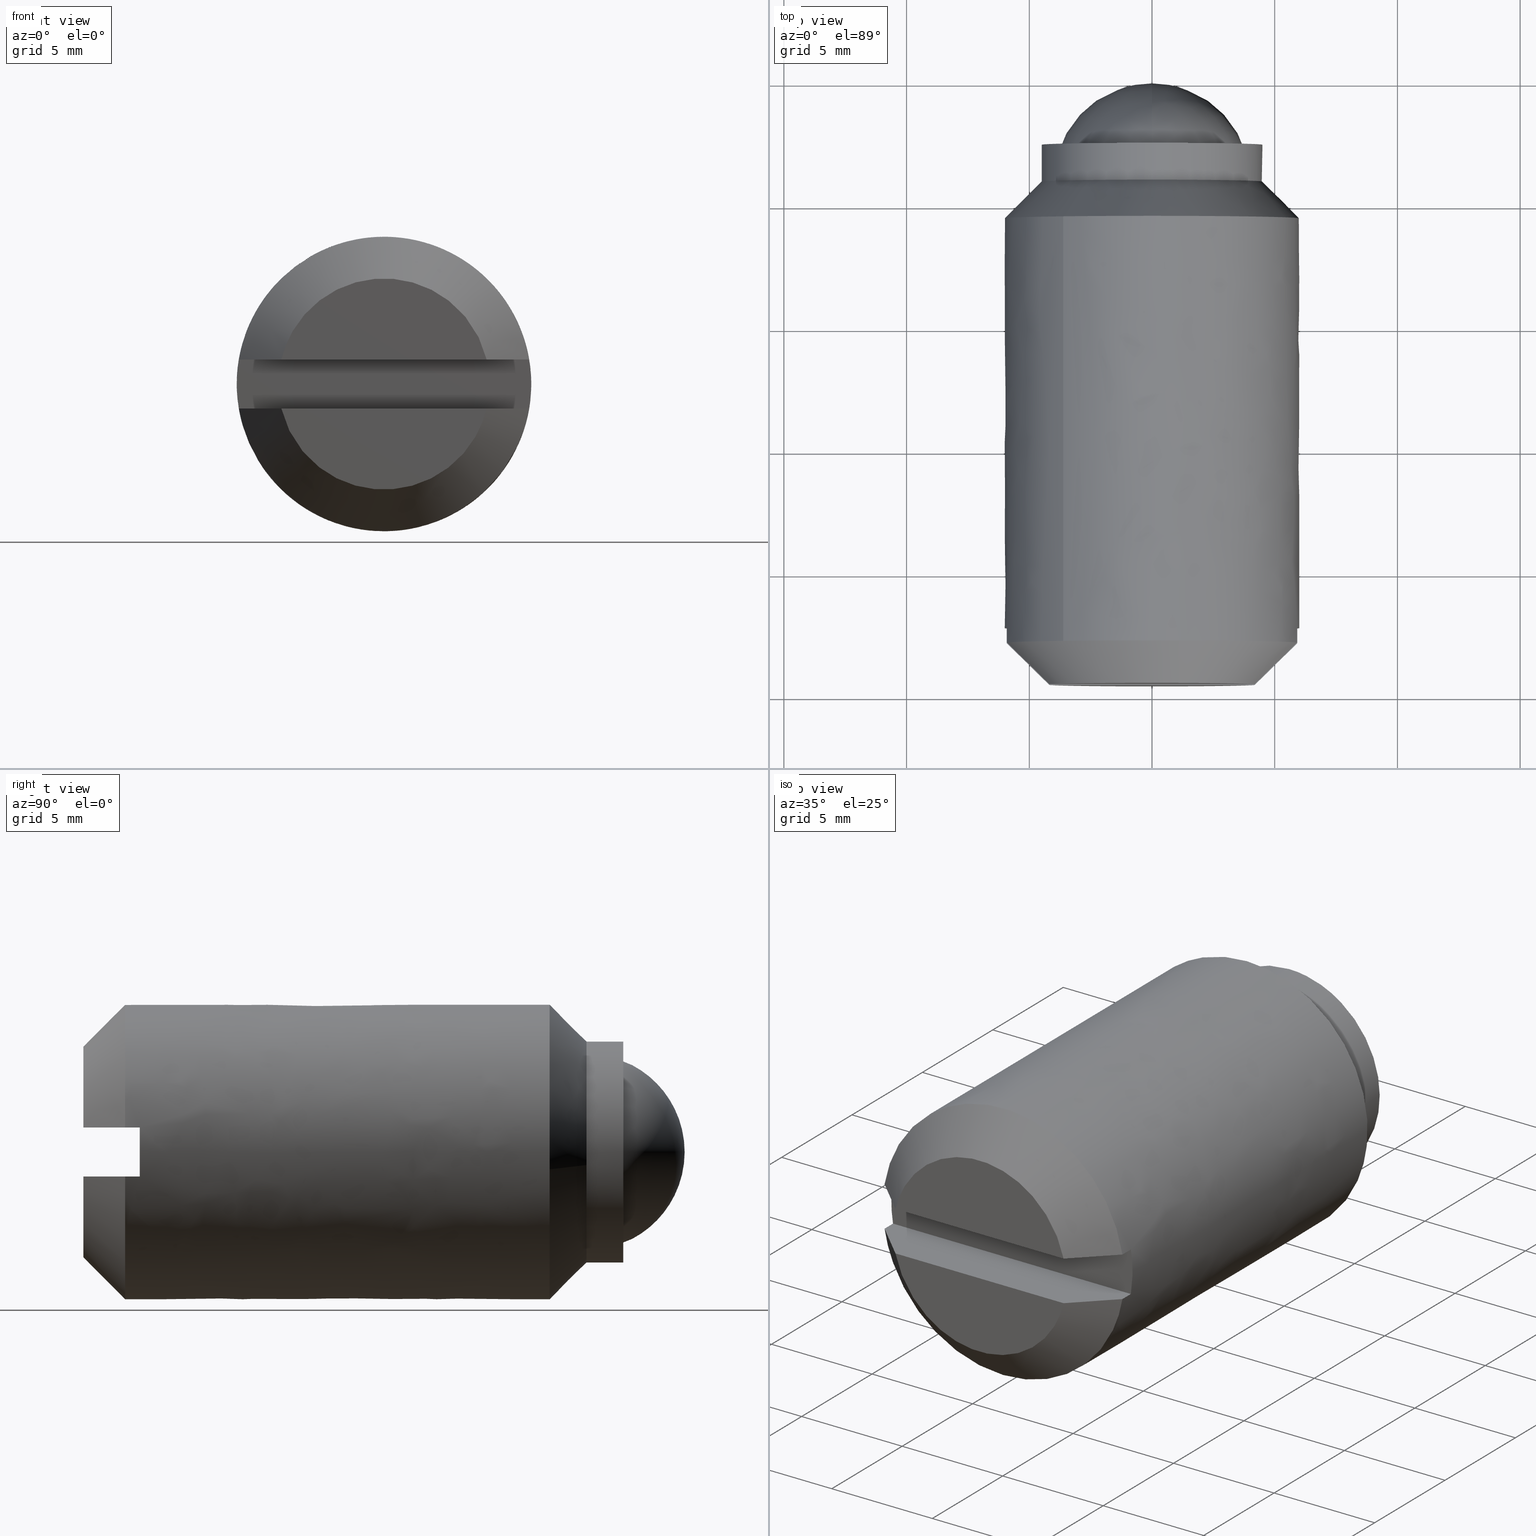
[diagram: canonical four-view strip — front | top / right | iso, engineering-drawing reading convention]
A machine part, canonical four-view strip (front | top / right | iso — engineering-drawing reading convention). The complete STEP part file that produces these views, byte-faithful:
ISO-10303-21;
HEADER;
/****************************************************************
 * Generated by software with PDE/Lib inside                    *
 * PDElib Version 4.4.1-0003, patched  Thursday August 19 11:58 *
 * International Technegroup Inc. (www.iti-oh.com)              *
 ****************************************************************/
FILE_DESCRIPTION((''),'2;1');
FILE_NAME('','2005-07-15T11:24:15',(''),(''),'','CADfix','');
FILE_SCHEMA(('AUTOMOTIVE_DESIGN'));
ENDSEC;
DATA;
#5=APPLICATION_CONTEXT('automotive design');
#6=APPLICATION_PROTOCOL_DEFINITION('Draft International Standard','automotive_design',1998,#5);
#7=PRODUCT_CONTEXT('None',#5,'mechanical');
#8=PRODUCT('body','','None',(#7));
#9=PRODUCT_RELATED_PRODUCT_CATEGORY('part','description',(#8));
#10=PRODUCT_DEFINITION_FORMATION('None','None',#8);
#11=PRODUCT_DEFINITION_CONTEXT('part definition',#5,'design');
#12=PRODUCT_DEFINITION('None','None',#10,#11);
#18=(NAMED_UNIT(*)PLANE_ANGLE_UNIT()SI_UNIT($,.RADIAN.));
#19=DIMENSIONAL_EXPONENTS(0.0,0.0,0.0,0.0,0.0,0.0,0.0);
#20=PLANE_ANGLE_MEASURE_WITH_UNIT(PLANE_ANGLE_MEASURE(0.017453292500000),#18);
#24=(CONVERSION_BASED_UNIT('DEGREE',#20)NAMED_UNIT(#19)PLANE_ANGLE_UNIT());
#28=(NAMED_UNIT(*)SI_UNIT($,.STERADIAN.)SOLID_ANGLE_UNIT());
#32=(LENGTH_UNIT()NAMED_UNIT(*)SI_UNIT(.MILLI.,.METRE.));
#34=UNCERTAINTY_MEASURE_WITH_UNIT(LENGTH_MEASURE(0.001000000000000),#32,'DISTANCE_ACCURACY_VALUE','');
#36=(GEOMETRIC_REPRESENTATION_CONTEXT(3)GLOBAL_UNCERTAINTY_ASSIGNED_CONTEXT((#34))GLOBAL_UNIT_ASSIGNED_CONTEXT((#24,#28,#32))REPRESENTATION_CONTEXT('None','None'));
#37=AXIS2_PLACEMENT_3D('',#38,#39,#40);
#38=CARTESIAN_POINT('',(0.0,0.0,0.0));
#39=DIRECTION('',(0.0,0.0,1.0));
#40=DIRECTION('',(1.0,0.0,0.0));
#41=ADVANCED_BREP_SHAPE_REPRESENTATION('',(#37,#1009,#1220),#36);
#42=PRODUCT_DEFINITION_SHAPE('','',#12);
#43=SHAPE_DEFINITION_REPRESENTATION(#42,#41);
#44=CARTESIAN_POINT('',(-3.972038105454666,-2.262499999999943,0.472136938627034));
#45=CARTESIAN_POINT('',(-3.985550461794422,-2.262499999999943,0.358458914551911));
#46=CARTESIAN_POINT('',(-3.992539193687467,-2.262499999999943,0.244194158139428));
#47=CARTESIAN_POINT('',(-4.236733351826894,-2.262499999999944,-3.748345035548039));
#48=CARTESIAN_POINT('',(-0.244194158139428,-2.262499999999943,-3.992539193687467));
#49=CARTESIAN_POINT('',(3.748345035548039,-2.262499999999944,-4.236733351826894));
#50=CARTESIAN_POINT('',(3.992539193687467,-2.262499999999943,-0.244194158139428));
#51=CARTESIAN_POINT('',(-3.972038105454666,-12.243437500000006,0.472136938627034));
#52=CARTESIAN_POINT('',(-3.985550461794422,-12.243437500000004,0.358458914551911));
#53=CARTESIAN_POINT('',(-3.992539193687467,-12.243437500000001,0.244194158139428));
#54=CARTESIAN_POINT('',(-4.236733351826894,-12.243437500000004,-3.748345035548039));
#55=CARTESIAN_POINT('',(-0.244194158139428,-12.243437500000001,-3.992539193687467));
#56=CARTESIAN_POINT('',(3.748345035548039,-12.243437500000004,-4.236733351826894));
#57=CARTESIAN_POINT('',(3.992539193687467,-12.243437500000001,-0.244194158139428));
#65=(BOUNDED_SURFACE()B_SPLINE_SURFACE(2,1,((#44,#51),(#45,#52),(#46,#53),(#47,#54),(#48,#55),(#49,#56),(#50,#57)),.UNSPECIFIED.,.F.,.F.,.U.)B_SPLINE_SURFACE_WITH_KNOTS((3,2,2,3),(2,2),(0.0,0.265096679918781,6.892513677888299,13.519930675857820),(0.0,9.980937500000062),.UNSPECIFIED.)GEOMETRIC_REPRESENTATION_ITEM()RATIONAL_B_SPLINE_SURFACE(((0.977505800795127,0.977505800795127),(0.988284271247462,0.988284271247462),(1.0,1.0),(0.707106781186548,0.707106781186548),(1.0,1.0),(0.707106781186548,0.707106781186548),(1.0,1.0)))REPRESENTATION_ITEM('')SURFACE());
#66=CARTESIAN_POINT('',(-3.972038896442782,-11.999999999999989,0.472130284032587));
#67=VERTEX_POINT('',#66);
#68=CARTESIAN_POINT('',(0.0,-12.0,-4.0));
#69=VERTEX_POINT('',#68);
#70=CARTESIAN_POINT('',(-3.972038896442782,-11.999999999999984,0.472130284032587));
#71=CARTESIAN_POINT('',(-4.0,-12.000000000000004,0.236893116135492));
#72=CARTESIAN_POINT('',(-4.0,-12.0,0.0));
#73=CARTESIAN_POINT('',(-4.000000000000000,-12.0,-4.000000000000000));
#74=CARTESIAN_POINT('',(0.0,-12.0,-4.0));
#82=(BOUNDED_CURVE()B_SPLINE_CURVE(2,(#70,#71,#72,#73,#74),.UNSPECIFIED.,.F.,.U.)B_SPLINE_CURVE_WITH_KNOTS((3,2,3),(0.229562756656985,0.250000000000000,0.500000000000000),.UNSPECIFIED.)CURVE()GEOMETRIC_REPRESENTATION_ITEM()RATIONAL_B_SPLINE_CURVE((0.956027309157251,0.976056280054362,1.0,0.707106781186548,1.0))REPRESENTATION_ITEM(''));
#83=EDGE_CURVE('',#67,#69,#82,.T.);
#84=ORIENTED_EDGE('',*,*,#83,.T.);
#85=CARTESIAN_POINT('',(3.992539231132344,-12.0,-0.244193545919572));
#86=VERTEX_POINT('',#85);
#87=CARTESIAN_POINT('',(0.0,-12.0,-4.0));
#88=CARTESIAN_POINT('',(3.762825423769689,-12.0,-4.000000000000001));
#89=CARTESIAN_POINT('',(3.992539231132344,-12.000000000000004,-0.244193545919572));
#97=(BOUNDED_CURVE()B_SPLINE_CURVE(2,(#87,#88,#89),.UNSPECIFIED.,.F.,.U.)B_SPLINE_CURVE_WITH_KNOTS((3,3),(0.500000000000000,0.739333015158958),.UNSPECIFIED.)CURVE()GEOMETRIC_REPRESENTATION_ITEM()RATIONAL_B_SPLINE_CURVE((1.0,0.719603931287056,0.976072155084410))REPRESENTATION_ITEM(''));
#98=EDGE_CURVE('',#69,#86,#97,.T.);
#99=ORIENTED_EDGE('',*,*,#98,.T.);
#100=CARTESIAN_POINT('',(3.992539230669607,-2.499999999999945,-0.244193553485292));
#101=VERTEX_POINT('',#100);
#102=CARTESIAN_POINT('',(3.992539230669607,-2.499999999999945,-0.244193553485292));
#103=CARTESIAN_POINT('',(3.992539231132344,-12.0,-0.244193545919572));
#104=QUASI_UNIFORM_CURVE('',1,(#102,#103),.UNSPECIFIED.,.F.,.U.);
#105=EDGE_CURVE('',#101,#86,#104,.T.);
#106=ORIENTED_EDGE('',*,*,#105,.F.);
#107=CARTESIAN_POINT('',(0.0,-2.499999999999945,-4.0));
#108=VERTEX_POINT('',#107);
#109=CARTESIAN_POINT('',(0.0,-2.499999999999945,-4.0));
#110=CARTESIAN_POINT('',(3.762825409482173,-2.499999999999945,-4.000000000000000));
#111=CARTESIAN_POINT('',(3.992539230669606,-2.499999999999945,-0.244193553485292));
#119=(BOUNDED_CURVE()B_SPLINE_CURVE(2,(#109,#110,#111),.UNSPECIFIED.,.F.,.U.)B_SPLINE_CURVE_WITH_KNOTS((3,3),(0.500000000000000,0.739333014505017),.UNSPECIFIED.)CURVE()GEOMETRIC_REPRESENTATION_ITEM()RATIONAL_B_SPLINE_CURVE((1.0,0.719603932053196,0.976072153682888))REPRESENTATION_ITEM(''));
#120=EDGE_CURVE('',#108,#101,#119,.T.);
#121=ORIENTED_EDGE('',*,*,#120,.F.);
#122=CARTESIAN_POINT('',(-3.972038886687353,-2.499999999999945,0.472130366106310));
#123=VERTEX_POINT('',#122);
#124=CARTESIAN_POINT('',(-3.972038886687353,-2.499999999999945,0.472130366106311));
#125=CARTESIAN_POINT('',(-4.0,-2.499999999999945,0.236893157606169));
#126=CARTESIAN_POINT('',(-4.0,-2.499999999999945,0.0));
#127=CARTESIAN_POINT('',(-4.000000000000000,-2.499999999999945,-4.000000000000000));
#128=CARTESIAN_POINT('',(0.0,-2.499999999999945,-4.0));
#136=(BOUNDED_CURVE()B_SPLINE_CURVE(2,(#124,#125,#126,#127,#128),.UNSPECIFIED.,.F.,.U.)B_SPLINE_CURVE_WITH_KNOTS((3,2,3),(0.229562753164891,0.250000000000000,0.500000000000000),.UNSPECIFIED.)CURVE()GEOMETRIC_REPRESENTATION_ITEM()RATIONAL_B_SPLINE_CURVE((0.956027302312587,0.976056275963120,1.0,0.707106781186548,1.0))REPRESENTATION_ITEM(''));
#137=EDGE_CURVE('',#123,#108,#136,.T.);
#138=ORIENTED_EDGE('',*,*,#137,.F.);
#139=CARTESIAN_POINT('',(-3.972038886687353,-2.499999999999945,0.472130366106310));
#140=CARTESIAN_POINT('',(-3.972038896442782,-11.999999999999989,0.472130284032587));
#141=QUASI_UNIFORM_CURVE('',1,(#139,#140),.UNSPECIFIED.,.F.,.U.);
#142=EDGE_CURVE('',#123,#67,#141,.T.);
#143=ORIENTED_EDGE('',*,*,#142,.T.);
#144=EDGE_LOOP('',(#84,#99,#106,#121,#138,#143));
#145=FACE_OUTER_BOUND('',#144,.T.);
#146=ADVANCED_FACE('',(#145),#65,.F.);
#147=CARTESIAN_POINT('',(3.989174187877372,-2.262499999999942,-0.299211516810690));
#148=CARTESIAN_POINT('',(3.990851875276595,-2.262499999999943,-0.271781570299352));
#149=CARTESIAN_POINT('',(4.236733351826894,-2.262499999999944,3.748345035548039));
#150=CARTESIAN_POINT('',(0.244194158139428,-2.262499999999943,3.992539193687467));
#151=CARTESIAN_POINT('',(-3.526173963358004,-2.262499999999942,4.223144786930110));
#152=CARTESIAN_POINT('',(-3.975376513758343,-2.262499999999943,0.444051262822191));
#153=CARTESIAN_POINT('',(-3.978696979501716,-2.262499999999943,0.416116535878578));
#154=CARTESIAN_POINT('',(3.989174187877372,-12.243437499999997,-0.299211516810690));
#155=CARTESIAN_POINT('',(3.990851875276595,-12.243437500000010,-0.271781570299352));
#156=CARTESIAN_POINT('',(4.236733351826894,-12.243437500000004,3.748345035548039));
#157=CARTESIAN_POINT('',(0.244194158139428,-12.243437500000001,3.992539193687467));
#158=CARTESIAN_POINT('',(-3.526173963358004,-12.243437500000002,4.223144786930110));
#159=CARTESIAN_POINT('',(-3.975376513758343,-12.243437500000008,0.444051262822191));
#160=CARTESIAN_POINT('',(-3.978696979501716,-12.243437500000010,0.416116535878578));
#168=(BOUNDED_SURFACE()B_SPLINE_SURFACE(2,1,((#147,#154),(#148,#155),(#149,#156),(#150,#157),(#151,#158),(#152,#159),(#153,#160)),.UNSPECIFIED.,.F.,.F.,.U.)B_SPLINE_SURFACE_WITH_KNOTS((3,1,2,1,3),(2,2),(0.0,0.064948010232746,6.692365008202263,13.054685326253001,13.119641720823600),(0.0,9.980937500000065),.UNSPECIFIED.)GEOMETRIC_REPRESENTATION_ITEM()RATIONAL_B_SPLINE_SURFACE(((1.005740647307519,1.005740647307519),(1.002870323653759,1.002870323653759),(0.707106781186548,0.707106781186548),(1.0,1.0),(0.718822509939086,0.718822509939086),(0.980146839452359,0.980146839452359),(0.982787878109591,0.982787878109591)))REPRESENTATION_ITEM('')SURFACE());
#169=CARTESIAN_POINT('',(0.0,-12.0,4.0));
#170=VERTEX_POINT('',#169);
#171=CARTESIAN_POINT('',(0.0,-12.0,4.0));
#172=CARTESIAN_POINT('',(-3.552704097758190,-12.0,4.000000000000000));
#173=CARTESIAN_POINT('',(-3.972038896442782,-11.999999999999984,0.472130284032587));
#181=(BOUNDED_CURVE()B_SPLINE_CURVE(2,(#171,#172,#173),.UNSPECIFIED.,.F.,.U.)B_SPLINE_CURVE_WITH_KNOTS((3,3),(0.0,0.229562756656985),.UNSPECIFIED.)CURVE()GEOMETRIC_REPRESENTATION_ITEM()RATIONAL_B_SPLINE_CURVE((1.0,0.731050501132186,0.956027309157251))REPRESENTATION_ITEM(''));
#182=EDGE_CURVE('',#170,#67,#181,.T.);
#183=ORIENTED_EDGE('',*,*,#182,.T.);
#184=ORIENTED_EDGE('',*,*,#142,.F.);
#185=CARTESIAN_POINT('',(0.0,-2.499999999999945,4.0));
#186=VERTEX_POINT('',#185);
#187=CARTESIAN_POINT('',(0.0,-2.499999999999945,4.0));
#188=CARTESIAN_POINT('',(-3.552704023832381,-2.499999999999945,4.000000000000000));
#189=CARTESIAN_POINT('',(-3.972038886687353,-2.499999999999945,0.472130366106311));
#197=(BOUNDED_CURVE()B_SPLINE_CURVE(2,(#187,#188,#189),.UNSPECIFIED.,.F.,.U.)B_SPLINE_CURVE_WITH_KNOTS((3,3),(0.0,0.229562753164891),.UNSPECIFIED.)CURVE()GEOMETRIC_REPRESENTATION_ITEM()RATIONAL_B_SPLINE_CURVE((1.0,0.731050505223428,0.956027302312587))REPRESENTATION_ITEM(''));
#198=EDGE_CURVE('',#186,#123,#197,.T.);
#199=ORIENTED_EDGE('',*,*,#198,.F.);
#200=CARTESIAN_POINT('',(3.992539230669606,-2.499999999999944,-0.244193553485292));
#201=CARTESIAN_POINT('',(4.000000000000000,-2.499999999999945,-0.122210446844837));
#202=CARTESIAN_POINT('',(4.0,-2.499999999999945,0.0));
#203=CARTESIAN_POINT('',(4.000000000000000,-2.499999999999945,4.000000000000000));
#204=CARTESIAN_POINT('',(0.0,-2.499999999999945,4.0));
#212=(BOUNDED_CURVE()B_SPLINE_CURVE(2,(#200,#201,#202,#203,#204),.UNSPECIFIED.,.F.,.U.)B_SPLINE_CURVE_WITH_KNOTS((3,2,3),(0.739333014505017,0.750000000000000,1.0),.UNSPECIFIED.)CURVE()GEOMETRIC_REPRESENTATION_ITEM()RATIONAL_B_SPLINE_CURVE((0.976072153682889,0.987502849133352,1.0,0.707106781186548,1.0))REPRESENTATION_ITEM(''));
#213=EDGE_CURVE('',#101,#186,#212,.T.);
#214=ORIENTED_EDGE('',*,*,#213,.F.);
#215=ORIENTED_EDGE('',*,*,#105,.T.);
#216=CARTESIAN_POINT('',(3.992539231132343,-12.000000000000005,-0.244193545919572));
#217=CARTESIAN_POINT('',(4.0,-12.000000000000004,-0.122210439257904));
#218=CARTESIAN_POINT('',(4.0,-12.0,0.0));
#219=CARTESIAN_POINT('',(4.000000000000000,-12.0,4.000000000000000));
#220=CARTESIAN_POINT('',(0.0,-12.0,4.0));
#228=(BOUNDED_CURVE()B_SPLINE_CURVE(2,(#216,#217,#218,#219,#220),.UNSPECIFIED.,.F.,.U.)B_SPLINE_CURVE_WITH_KNOTS((3,2,3),(0.739333015158957,0.750000000000000,1.0),.UNSPECIFIED.)CURVE()GEOMETRIC_REPRESENTATION_ITEM()RATIONAL_B_SPLINE_CURVE((0.976072155084408,0.987502849899491,1.0,0.707106781186548,1.0))REPRESENTATION_ITEM(''));
#229=EDGE_CURVE('',#86,#170,#228,.T.);
#230=ORIENTED_EDGE('',*,*,#229,.T.);
#231=EDGE_LOOP('',(#183,#184,#199,#214,#215,#230));
#232=FACE_OUTER_BOUND('',#231,.T.);
#233=ADVANCED_FACE('',(#232),#168,.F.);
#234=CARTESIAN_POINT('',(1.621813460999532,-2.462499999999999,4.197797565559015));
#235=CARTESIAN_POINT('',(1.602024149733922,-2.462499999999999,4.205230482581115));
#236=CARTESIAN_POINT('',(0.949452532719337,-2.462500000000000,4.450338087143176));
#237=CARTESIAN_POINT('',(0.274718427906856,-2.462500000000000,4.491606592898398));
#238=CARTESIAN_POINT('',(-4.216888164991543,-2.462500000000000,4.766325020805255));
#239=CARTESIAN_POINT('',(-4.492770288826411,-2.462500000000000,0.255692167665752));
#240=CARTESIAN_POINT('',(-4.493929908284846,-2.462500000000000,0.236732557113064));
#241=CARTESIAN_POINT('',(1.621813460999532,-4.038437500000001,4.197797565559015));
#242=CARTESIAN_POINT('',(1.602024149733922,-4.038437500000002,4.205230482581115));
#243=CARTESIAN_POINT('',(0.949452532719337,-4.038437500000001,4.450338087143176));
#244=CARTESIAN_POINT('',(0.274718427906856,-4.038437500000001,4.491606592898398));
#245=CARTESIAN_POINT('',(-4.216888164991543,-4.038437500000002,4.766325020805255));
#246=CARTESIAN_POINT('',(-4.492770288826411,-4.038437500000001,0.255692167665752));
#247=CARTESIAN_POINT('',(-4.493929908284846,-4.038437500000001,0.236732557113064));
#255=(BOUNDED_SURFACE()B_SPLINE_SURFACE(2,1,((#234,#241),(#235,#242),(#236,#243),(#237,#244),(#238,#245),(#239,#246),(#240,#247)),.UNSPECIFIED.,.F.,.F.,.U.)B_SPLINE_SURFACE_WITH_KNOTS((3,1,2,1,3),(2,2),(0.0,0.044733188950966,1.535902013494107,8.991746136209814,9.036489251434103),(0.0,1.0),.UNSPECIFIED.)GEOMETRIC_REPRESENTATION_ITEM()RATIONAL_B_SPLINE_SURFACE(((0.904165427229607,0.904165427229607),(0.905219798604651,0.905219798604651),(0.941421356237309,0.941421356237309),(1.0,1.0),(0.707106781186548,0.707106781186548),(1.001757675565917,1.001757675565917),(1.003515351131834,1.003515351131834)))REPRESENTATION_ITEM('')SURFACE());
#256=CARTESIAN_POINT('',(1.582278602989913,-3.999999999999957,4.212646961533132));
#257=VERTEX_POINT('',#256);
#258=CARTESIAN_POINT('',(0.0,-4.0,4.499999999999998));
#259=VERTEX_POINT('',#258);
#260=CARTESIAN_POINT('',(1.582278602989913,-3.999999999999957,4.212646961533133));
#261=CARTESIAN_POINT('',(0.817231978397782,-4.0,4.499999999999997));
#262=CARTESIAN_POINT('',(0.0,-4.0,4.499999999999998));
#270=(BOUNDED_CURVE()B_SPLINE_CURVE(2,(#260,#261,#262),.UNSPECIFIED.,.F.,.U.)B_SPLINE_CURVE_WITH_KNOTS((3,3),(0.440284256452175,0.500000000000000),.UNSPECIFIED.)CURVE()GEOMETRIC_REPRESENTATION_ITEM()RATIONAL_B_SPLINE_CURVE((0.893499659332722,0.930038654633755,1.0))REPRESENTATION_ITEM(''));
#271=EDGE_CURVE('',#257,#259,#270,.T.);
#272=ORIENTED_EDGE('',*,*,#271,.F.);
#273=CARTESIAN_POINT('',(1.582279204831402,-2.500000000000000,4.212646735480542));
#274=VERTEX_POINT('',#273);
#275=CARTESIAN_POINT('',(1.582279204831402,-2.500000000000000,4.212646735480542));
#276=CARTESIAN_POINT('',(1.582278602989913,-3.999999999999957,4.212646961533132));
#277=QUASI_UNIFORM_CURVE('',1,(#275,#276),.UNSPECIFIED.,.F.,.U.);
#278=EDGE_CURVE('',#274,#257,#277,.T.);
#279=ORIENTED_EDGE('',*,*,#278,.F.);
#280=CARTESIAN_POINT('',(0.0,-2.500000000000000,4.499999999999998));
#281=VERTEX_POINT('',#280);
#282=CARTESIAN_POINT('',(1.582279204831402,-2.500000000000000,4.212646735480543));
#283=CARTESIAN_POINT('',(0.817232310446578,-2.500000000000000,4.499999999999998));
#284=CARTESIAN_POINT('',(0.0,-2.500000000000000,4.499999999999998));
#292=(BOUNDED_CURVE()B_SPLINE_CURVE(2,(#282,#283,#284),.UNSPECIFIED.,.F.,.U.)B_SPLINE_CURVE_WITH_KNOTS((3,3),(0.440284233886600,0.500000000000000),.UNSPECIFIED.)CURVE()GEOMETRIC_REPRESENTATION_ITEM()RATIONAL_B_SPLINE_CURVE((0.893499631717785,0.930038628196540,1.0))REPRESENTATION_ITEM(''));
#293=EDGE_CURVE('',#274,#281,#292,.T.);
#294=ORIENTED_EDGE('',*,*,#293,.T.);
#295=CARTESIAN_POINT('',(-4.491607010843072,-2.500000000000000,0.274711594401256));
#296=VERTEX_POINT('',#295);
#297=CARTESIAN_POINT('',(0.0,-2.500000000000000,4.499999999999998));
#298=CARTESIAN_POINT('',(-4.233183753447301,-2.500000000000000,4.499999999999998));
#299=CARTESIAN_POINT('',(-4.491607010843072,-2.500000000000000,0.274711594401256));
#307=(BOUNDED_CURVE()B_SPLINE_CURVE(2,(#297,#298,#299),.UNSPECIFIED.,.F.,.U.)B_SPLINE_CURVE_WITH_KNOTS((3,3),(0.500000000000000,0.739333224753758),.UNSPECIFIED.)CURVE()GEOMETRIC_REPRESENTATION_ITEM()RATIONAL_B_SPLINE_CURVE((1.0,0.719603685731474,0.976072604286583))REPRESENTATION_ITEM(''));
#308=EDGE_CURVE('',#281,#296,#307,.T.);
#309=ORIENTED_EDGE('',*,*,#308,.T.);
#310=CARTESIAN_POINT('',(-4.491606592899792,-4.000000000005571,0.274718427926606));
#311=VERTEX_POINT('',#310);
#312=CARTESIAN_POINT('',(-4.491607010843072,-2.500000000000000,0.274711594401256));
#313=CARTESIAN_POINT('',(-4.491606592899792,-4.000000000005571,0.274718427926606));
#314=QUASI_UNIFORM_CURVE('',1,(#312,#313),.UNSPECIFIED.,.F.,.U.);
#315=EDGE_CURVE('',#296,#311,#314,.T.);
#316=ORIENTED_EDGE('',*,*,#315,.T.);
#317=CARTESIAN_POINT('',(0.0,-4.0,4.499999999999998));
#318=CARTESIAN_POINT('',(-4.233177301001646,-4.000000000000001,4.499999999999999));
#319=CARTESIAN_POINT('',(-4.491606592899792,-4.000000000005571,0.274718427926606));
#327=(BOUNDED_CURVE()B_SPLINE_CURVE(2,(#317,#318,#319),.UNSPECIFIED.,.F.,.U.)B_SPLINE_CURVE_WITH_KNOTS((3,3),(0.500000000000000,0.739332962238958),.UNSPECIFIED.)CURVE()GEOMETRIC_REPRESENTATION_ITEM()RATIONAL_B_SPLINE_CURVE((1.0,0.719603993286692,0.976072041666751))REPRESENTATION_ITEM(''));
#328=EDGE_CURVE('',#259,#311,#327,.T.);
#329=ORIENTED_EDGE('',*,*,#328,.F.);
#330=EDGE_LOOP('',(#272,#279,#294,#309,#316,#329));
#331=FACE_OUTER_BOUND('',#330,.T.);
#332=ADVANCED_FACE('',(#331),#255,.T.);
#333=CARTESIAN_POINT('',(-4.491606592898400,-2.462500000000000,0.274718427906855));
#334=CARTESIAN_POINT('',(-4.766325020805256,-2.462500000000000,-4.216888164991544));
#335=CARTESIAN_POINT('',(-0.274718427906856,-2.462500000000000,-4.491606592898402));
#336=CARTESIAN_POINT('',(4.216888164991543,-2.462500000000000,-4.766325020805257));
#337=CARTESIAN_POINT('',(4.491606592898400,-2.462500000000000,-0.274718427906858));
#338=CARTESIAN_POINT('',(4.694567502912038,-2.462499999999999,3.043663118113791));
#339=CARTESIAN_POINT('',(1.582280884762075,-2.462500000000000,4.212646104494955));
#340=CARTESIAN_POINT('',(-4.491606592898400,-4.038437500000001,0.274718427906855));
#341=CARTESIAN_POINT('',(-4.766325020805256,-4.038437500000002,-4.216888164991544));
#342=CARTESIAN_POINT('',(-0.274718427906856,-4.038437500000001,-4.491606592898402));
#343=CARTESIAN_POINT('',(4.216888164991543,-4.038437500000002,-4.766325020805257));
#344=CARTESIAN_POINT('',(4.491606592898400,-4.038437500000001,-0.274718427906858));
#345=CARTESIAN_POINT('',(4.694567502912038,-4.038437500000001,3.043663118113791));
#346=CARTESIAN_POINT('',(1.582280884762075,-4.038437500000001,4.212646104494955));
#354=(BOUNDED_SURFACE()B_SPLINE_SURFACE(2,1,((#333,#340),(#334,#341),(#335,#342),(#336,#343),(#337,#344),(#338,#345),(#339,#346)),.UNSPECIFIED.,.F.,.F.,.U.)B_SPLINE_SURFACE_WITH_KNOTS((3,2,2,3),(2,2),(0.0,7.455844122715709,14.911688245431421,20.876363543603979),(0.0,1.0),.UNSPECIFIED.)GEOMETRIC_REPRESENTATION_ITEM()RATIONAL_B_SPLINE_SURFACE(((1.0,1.0),(0.707106781186548,0.707106781186548),(1.0,1.0),(0.707106781186548,0.707106781186548),(1.0,1.0),(0.765685424949238,0.765685424949238),(0.906274169979695,0.906274169979695)))REPRESENTATION_ITEM('')SURFACE());
#355=CARTESIAN_POINT('',(4.468542868636527,-4.000000000000478,-0.531154055959211));
#356=VERTEX_POINT('',#355);
#357=CARTESIAN_POINT('',(4.468542868636527,-4.000000000000478,-0.531154055959211));
#358=CARTESIAN_POINT('',(4.499999999999999,-4.0,-0.266508538437376));
#359=CARTESIAN_POINT('',(4.500000000000000,-4.0,-1.591988E-015));
#360=CARTESIAN_POINT('',(4.500000000000000,-4.0,3.116744983957551));
#361=CARTESIAN_POINT('',(1.582278602989913,-3.999999999999957,4.212646961533133));
#369=(BOUNDED_CURVE()B_SPLINE_CURVE(2,(#357,#358,#359,#360,#361),.UNSPECIFIED.,.F.,.U.)B_SPLINE_CURVE_WITH_KNOTS((3,2,3),(0.229562473515361,0.250000000000000,0.440284256452175),.UNSPECIFIED.)CURVE()GEOMETRIC_REPRESENTATION_ITEM()RATIONAL_B_SPLINE_CURVE((0.956026754187331,0.976055948333316,1.0,0.777068126552792,0.893499659332722))REPRESENTATION_ITEM(''));
#370=EDGE_CURVE('',#356,#257,#369,.T.);
#371=ORIENTED_EDGE('',*,*,#370,.F.);
#372=CARTESIAN_POINT('',(0.0,-4.0,-4.500000000000002));
#373=VERTEX_POINT('',#372);
#374=CARTESIAN_POINT('',(0.0,-4.0,-4.500000000000002));
#375=CARTESIAN_POINT('',(3.996785366774416,-4.0,-4.500000000000002));
#376=CARTESIAN_POINT('',(4.468542868636527,-4.000000000000479,-0.531154055959211));
#384=(BOUNDED_CURVE()B_SPLINE_CURVE(2,(#374,#375,#376),.UNSPECIFIED.,.F.,.U.)B_SPLINE_CURVE_WITH_KNOTS((3,3),(0.0,0.229562473515361),.UNSPECIFIED.)CURVE()GEOMETRIC_REPRESENTATION_ITEM()RATIONAL_B_SPLINE_CURVE((1.0,0.731050832853231,0.956026754187331))REPRESENTATION_ITEM(''));
#385=EDGE_CURVE('',#373,#356,#384,.T.);
#386=ORIENTED_EDGE('',*,*,#385,.F.);
#387=CARTESIAN_POINT('',(-4.491606592899793,-4.000000000005571,0.274718427926606));
#388=CARTESIAN_POINT('',(-4.500000000000000,-4.000000000000000,0.137487434882944));
#389=CARTESIAN_POINT('',(-4.500000000000000,-4.0,-1.591988E-015));
#390=CARTESIAN_POINT('',(-4.500000000000000,-4.0,-4.500000000000002));
#391=CARTESIAN_POINT('',(0.0,-4.0,-4.500000000000002));
#399=(BOUNDED_CURVE()B_SPLINE_CURVE(2,(#387,#388,#389,#390,#391),.UNSPECIFIED.,.F.,.U.)B_SPLINE_CURVE_WITH_KNOTS((3,2,3),(0.739332962238958,0.750000000000000,1.0),.UNSPECIFIED.)CURVE()GEOMETRIC_REPRESENTATION_ITEM()RATIONAL_B_SPLINE_CURVE((0.976072041666749,0.987502787899855,1.0,0.707106781186547,1.0))REPRESENTATION_ITEM(''));
#400=EDGE_CURVE('',#311,#373,#399,.T.);
#401=ORIENTED_EDGE('',*,*,#400,.F.);
#402=ORIENTED_EDGE('',*,*,#315,.F.);
#403=CARTESIAN_POINT('',(0.0,-2.500000000000000,-4.500000000000002));
#404=VERTEX_POINT('',#403);
#405=CARTESIAN_POINT('',(-4.491607010843072,-2.500000000000000,0.274711594401256));
#406=CARTESIAN_POINT('',(-4.500000000000001,-2.500000000000000,0.137484008511006));
#407=CARTESIAN_POINT('',(-4.500000000000000,-2.500000000000000,-1.591988E-015));
#408=CARTESIAN_POINT('',(-4.500000000000000,-2.500000000000000,-4.500000000000002));
#409=CARTESIAN_POINT('',(0.0,-2.500000000000000,-4.500000000000002));
#417=(BOUNDED_CURVE()B_SPLINE_CURVE(2,(#405,#406,#407,#408,#409),.UNSPECIFIED.,.F.,.U.)B_SPLINE_CURVE_WITH_KNOTS((3,2,3),(0.739333224753758,0.750000000000000,1.0),.UNSPECIFIED.)CURVE()GEOMETRIC_REPRESENTATION_ITEM()RATIONAL_B_SPLINE_CURVE((0.976072604286583,0.987503095455074,1.0,0.707106781186547,1.0))REPRESENTATION_ITEM(''));
#418=EDGE_CURVE('',#296,#404,#417,.T.);
#419=ORIENTED_EDGE('',*,*,#418,.T.);
#420=CARTESIAN_POINT('',(0.0,-2.500000000000000,-4.500000000000002));
#421=CARTESIAN_POINT('',(4.500000000000000,-2.500000000000000,-4.500000000000002));
#422=CARTESIAN_POINT('',(4.500000000000000,-2.500000000000000,-1.591988E-015));
#423=CARTESIAN_POINT('',(4.500000000000000,-2.500000000000000,3.116744508309535));
#424=CARTESIAN_POINT('',(1.582279204831402,-2.500000000000000,4.212646735480543));
#432=(BOUNDED_CURVE()B_SPLINE_CURVE(2,(#420,#421,#422,#423,#424),.UNSPECIFIED.,.F.,.U.)B_SPLINE_CURVE_WITH_KNOTS((3,2,3),(0.0,0.250000000000000,0.440284233886600),.UNSPECIFIED.)CURVE()GEOMETRIC_REPRESENTATION_ITEM()RATIONAL_B_SPLINE_CURVE((1.0,0.707106781186547,1.0,0.777068152990007,0.893499631717785))REPRESENTATION_ITEM(''));
#433=EDGE_CURVE('',#404,#274,#432,.T.);
#434=ORIENTED_EDGE('',*,*,#433,.T.);
#435=ORIENTED_EDGE('',*,*,#278,.T.);
#436=EDGE_LOOP('',(#371,#386,#401,#402,#419,#434,#435));
#437=FACE_OUTER_BOUND('',#436,.T.);
#438=ADVANCED_FACE('',(#437),#354,.T.);
#439=CARTESIAN_POINT('',(4.431305011397859,-3.962500000000000,-0.526727772155786));
#440=CARTESIAN_POINT('',(4.446379733939400,-3.962500000000000,-0.399905726546977));
#441=CARTESIAN_POINT('',(4.454176537957578,-3.962500000000000,-0.272429107674301));
#442=CARTESIAN_POINT('',(4.726605645631879,-3.962500000000000,4.181747430283277));
#443=CARTESIAN_POINT('',(0.272429107674299,-3.962500000000000,4.454176537957577));
#444=CARTESIAN_POINT('',(-4.181747430283279,-3.962500000000000,4.726605645631875));
#445=CARTESIAN_POINT('',(-4.454176537957578,-3.962500000000000,0.272429107674298));
#446=CARTESIAN_POINT('',(5.996225961851604,-5.538437500000001,-0.712742348835172));
#447=CARTESIAN_POINT('',(6.016624341660442,-5.538437500000001,-0.541132937959890));
#448=CARTESIAN_POINT('',(6.027174596845543,-5.538437500000001,-0.368637790447515));
#449=CARTESIAN_POINT('',(6.395812387293058,-5.538437500000001,5.658536806398028));
#450=CARTESIAN_POINT('',(0.368637790447513,-5.538437500000001,6.027174596845542));
#451=CARTESIAN_POINT('',(-5.658536806398030,-5.538437500000001,6.395812387293055));
#452=CARTESIAN_POINT('',(-6.027174596845543,-5.538437500000001,0.368637790447511));
#460=(BOUNDED_SURFACE()B_SPLINE_SURFACE(2,1,((#439,#446),(#440,#447),(#441,#448),(#442,#449),(#443,#450),(#444,#451),(#445,#452)),.UNSPECIFIED.,.F.,.F.,.U.)B_SPLINE_SURFACE_WITH_KNOTS((3,2,2,3),(2,2),(0.0,0.400192433286767,10.405003265455910,20.409814097625059),(0.0,2.228712185952353),.UNSPECIFIED.)GEOMETRIC_REPRESENTATION_ITEM()RATIONAL_B_SPLINE_SURFACE(((0.977505800795127,0.977505800795127),(0.988284271247462,0.988284271247462),(1.0,1.0),(0.707106781186548,0.707106781186548),(1.0,1.0),(0.707106781186548,0.707106781186548),(1.0,1.0)))REPRESENTATION_ITEM('')SURFACE());
#461=ORIENTED_EDGE('',*,*,#370,.T.);
#462=ORIENTED_EDGE('',*,*,#271,.T.);
#463=ORIENTED_EDGE('',*,*,#328,.T.);
#464=CARTESIAN_POINT('',(-5.988808790533744,-5.500000000004731,0.366291237245100));
#465=VERTEX_POINT('',#464);
#466=CARTESIAN_POINT('',(-4.491606592899792,-4.000000000005571,0.274718427926606));
#467=CARTESIAN_POINT('',(-5.988808790533744,-5.500000000004731,0.366291237245100));
#468=QUASI_UNIFORM_CURVE('',1,(#466,#467),.UNSPECIFIED.,.F.,.U.);
#469=EDGE_CURVE('',#311,#465,#468,.T.);
#470=ORIENTED_EDGE('',*,*,#469,.T.);
#471=CARTESIAN_POINT('',(-3.618751996580211,-5.500000000000002,4.785878601390381));
#472=VERTEX_POINT('',#471);
#473=CARTESIAN_POINT('',(-3.618751996580210,-5.500000000000002,4.785878601390381));
#474=CARTESIAN_POINT('',(-5.820310628495616,-5.500000000000001,3.121211833940571));
#475=CARTESIAN_POINT('',(-5.988808790533744,-5.500000000004731,0.366291237245100));
#483=(BOUNDED_CURVE()B_SPLINE_CURVE(2,(#473,#474,#475),.UNSPECIFIED.,.F.,.U.)B_SPLINE_CURVE_WITH_KNOTS((3,3),(0.604146613491099,0.739332962239912),.UNSPECIFIED.)CURVE()GEOMETRIC_REPRESENTATION_ITEM()RATIONAL_B_SPLINE_CURVE((0.857629186986864,0.831207002155740,0.976072041668794))REPRESENTATION_ITEM(''));
#484=EDGE_CURVE('',#472,#465,#483,.T.);
#485=ORIENTED_EDGE('',*,*,#484,.F.);
#486=CARTESIAN_POINT('',(0.0,-5.500000000000000,5.999999999999998));
#487=VERTEX_POINT('',#486);
#488=CARTESIAN_POINT('',(0.0,-5.500000000000000,5.999999999999998));
#489=CARTESIAN_POINT('',(-2.013049583600106,-5.500000000000000,6.0));
#490=CARTESIAN_POINT('',(-3.618751996580212,-5.500000000000002,4.785878601390381));
#498=(BOUNDED_CURVE()B_SPLINE_CURVE(2,(#488,#489,#490),.UNSPECIFIED.,.F.,.U.)B_SPLINE_CURVE_WITH_KNOTS((3,3),(0.500000000000000,0.604146613491098),.UNSPECIFIED.)CURVE()GEOMETRIC_REPRESENTATION_ITEM()RATIONAL_B_SPLINE_CURVE((1.0,0.877984652584287,0.857629186986864))REPRESENTATION_ITEM(''));
#499=EDGE_CURVE('',#487,#472,#498,.T.);
#500=ORIENTED_EDGE('',*,*,#499,.F.);
#501=CARTESIAN_POINT('',(5.958057158182147,-5.500000000002313,-0.708205407958896));
#502=VERTEX_POINT('',#501);
#503=CARTESIAN_POINT('',(5.958057158182148,-5.500000000002313,-0.708205407958896));
#504=CARTESIAN_POINT('',(6.0,-5.500000000000001,-0.355344717929724));
#505=CARTESIAN_POINT('',(6.0,-5.500000000000000,-1.591988E-015));
#506=CARTESIAN_POINT('',(6.0,-5.500000000000001,5.999999999999998));
#507=CARTESIAN_POINT('',(0.0,-5.500000000000000,5.999999999999998));
#515=(BOUNDED_CURVE()B_SPLINE_CURVE(2,(#503,#504,#505,#506,#507),.UNSPECIFIED.,.F.,.U.)B_SPLINE_CURVE_WITH_KNOTS((3,2,3),(0.229562473514619,0.250000000000000,0.500000000000000),.UNSPECIFIED.)CURVE()GEOMETRIC_REPRESENTATION_ITEM()RATIONAL_B_SPLINE_CURVE((0.956026754185876,0.976055948332446,1.0,0.707106781186548,1.0))REPRESENTATION_ITEM(''));
#516=EDGE_CURVE('',#502,#487,#515,.T.);
#517=ORIENTED_EDGE('',*,*,#516,.F.);
#518=CARTESIAN_POINT('',(4.468542868636527,-4.000000000000478,-0.531154055959211));
#519=CARTESIAN_POINT('',(5.958057158182147,-5.500000000002313,-0.708205407958896));
#520=QUASI_UNIFORM_CURVE('',1,(#518,#519),.UNSPECIFIED.,.F.,.U.);
#521=EDGE_CURVE('',#356,#502,#520,.T.);
#522=ORIENTED_EDGE('',*,*,#521,.F.);
#523=EDGE_LOOP('',(#461,#462,#463,#470,#485,#500,#517,#522));
#524=FACE_OUTER_BOUND('',#523,.T.);
#525=ADVANCED_FACE('',(#524),#460,.T.);
#526=CARTESIAN_POINT('',(-4.454176537957578,-3.962500000000000,0.272429107674298));
#527=CARTESIAN_POINT('',(-4.726605645631879,-3.962500000000000,-4.181747430283282));
#528=CARTESIAN_POINT('',(-0.272429107674299,-3.962500000000000,-4.454176537957580));
#529=CARTESIAN_POINT('',(3.933887827871271,-3.962500000000000,-4.711445902918904));
#530=CARTESIAN_POINT('',(4.431305011397859,-3.962500000000000,-0.526727772155786));
#531=CARTESIAN_POINT('',(-6.027174596845543,-5.538437500000001,0.368637790447511));
#532=CARTESIAN_POINT('',(-6.395812387293058,-5.538437500000001,-5.658536806398032));
#533=CARTESIAN_POINT('',(-0.368637790447513,-5.538437500000001,-6.027174596845545));
#534=CARTESIAN_POINT('',(5.323145272966152,-5.538437500000001,-6.375298962332075));
#535=CARTESIAN_POINT('',(5.996225961851604,-5.538437500000001,-0.712742348835172));
#543=(BOUNDED_SURFACE()B_SPLINE_SURFACE(2,1,((#526,#531),(#527,#532),(#528,#533),(#529,#534),(#530,#535)),.UNSPECIFIED.,.F.,.F.,.U.)B_SPLINE_SURFACE_WITH_KNOTS((3,2,3),(2,2),(0.0,10.004810832169150,19.609429231051529),(0.0,2.228712185952353),.UNSPECIFIED.)GEOMETRIC_REPRESENTATION_ITEM()RATIONAL_B_SPLINE_SURFACE(((1.0,1.0),(0.707106781186548,0.707106781186548),(1.0,1.0),(0.718822509939086,0.718822509939086),(0.977505800795127,0.977505800795127)))REPRESENTATION_ITEM('')SURFACE());
#544=ORIENTED_EDGE('',*,*,#385,.T.);
#545=ORIENTED_EDGE('',*,*,#521,.T.);
#546=CARTESIAN_POINT('',(0.0,-5.500000000000000,-6.000000000000002));
#547=VERTEX_POINT('',#546);
#548=CARTESIAN_POINT('',(0.0,-5.500000000000000,-6.000000000000002));
#549=CARTESIAN_POINT('',(5.329047155675653,-5.500000000000000,-6.000000000000002));
#550=CARTESIAN_POINT('',(5.958057158182148,-5.500000000002313,-0.708205407958896));
#558=(BOUNDED_CURVE()B_SPLINE_CURVE(2,(#548,#549,#550),.UNSPECIFIED.,.F.,.U.)B_SPLINE_CURVE_WITH_KNOTS((3,3),(0.0,0.229562473514619),.UNSPECIFIED.)CURVE()GEOMETRIC_REPRESENTATION_ITEM()RATIONAL_B_SPLINE_CURVE((1.0,0.731050832854101,0.956026754185876))REPRESENTATION_ITEM(''));
#559=EDGE_CURVE('',#547,#502,#558,.T.);
#560=ORIENTED_EDGE('',*,*,#559,.F.);
#561=CARTESIAN_POINT('',(-5.500045112384811,-5.499999999999999,-2.397812286587266));
#562=VERTEX_POINT('',#561);
#563=CARTESIAN_POINT('',(-5.500045112384811,-5.499999999999998,-2.397812286587265));
#564=CARTESIAN_POINT('',(-3.929627091930062,-5.500000000000001,-6.000000000000002));
#565=CARTESIAN_POINT('',(0.0,-5.500000000000000,-6.000000000000002));
#573=(BOUNDED_CURVE()B_SPLINE_CURVE(2,(#563,#564,#565),.UNSPECIFIED.,.F.,.U.)B_SPLINE_CURVE_WITH_KNOTS((3,3),(0.817857007856095,1.0),.UNSPECIFIED.)CURVE()GEOMETRIC_REPRESENTATION_ITEM()RATIONAL_B_SPLINE_CURVE((0.884157887859825,0.786606210986633,1.0))REPRESENTATION_ITEM(''));
#574=EDGE_CURVE('',#562,#547,#573,.T.);
#575=ORIENTED_EDGE('',*,*,#574,.F.);
#576=CARTESIAN_POINT('',(-5.988808790533744,-5.500000000004731,0.366291237245100));
#577=CARTESIAN_POINT('',(-6.000000000000001,-5.500000000000000,0.183316579827302));
#578=CARTESIAN_POINT('',(-6.0,-5.500000000000000,-1.591988E-015));
#579=CARTESIAN_POINT('',(-6.0,-5.500000000000000,-1.251027589798952));
#580=CARTESIAN_POINT('',(-5.500045112384811,-5.499999999999998,-2.397812286587265));
#588=(BOUNDED_CURVE()B_SPLINE_CURVE(2,(#576,#577,#578,#579,#580),.UNSPECIFIED.,.F.,.U.)B_SPLINE_CURVE_WITH_KNOTS((3,2,3),(0.739332962239913,0.750000000000000,0.817857007856095),.UNSPECIFIED.)CURVE()GEOMETRIC_REPRESENTATION_ITEM()RATIONAL_B_SPLINE_CURVE((0.976072041668797,0.987502787900974,1.0,0.920500570199915,0.884157887859825))REPRESENTATION_ITEM(''));
#589=EDGE_CURVE('',#465,#562,#588,.T.);
#590=ORIENTED_EDGE('',*,*,#589,.F.);
#591=ORIENTED_EDGE('',*,*,#469,.F.);
#592=ORIENTED_EDGE('',*,*,#400,.T.);
#593=EDGE_LOOP('',(#544,#545,#560,#575,#590,#591,#592));
#594=FACE_OUTER_BOUND('',#593,.T.);
#595=ADVANCED_FACE('',(#594),#543,.T.);
#596=CARTESIAN_POINT('',(-5.500043192005914,-5.067499999999998,-2.397816691506962));
#597=CARTESIAN_POINT('',(-5.215423072728959,-5.067499999999998,-3.050670162283870));
#598=CARTESIAN_POINT('',(-4.785878244320990,-5.067499999999999,-3.618752468812288));
#599=CARTESIAN_POINT('',(-1.167125775508703,-5.067499999999999,-8.404630713133278));
#600=CARTESIAN_POINT('',(3.618752468812287,-5.067499999999999,-4.785878244320991));
#601=CARTESIAN_POINT('',(8.404630713133276,-5.067499999999999,-1.167125775508705));
#602=CARTESIAN_POINT('',(4.785878244320990,-5.067499999999999,3.618752468812285));
#603=CARTESIAN_POINT('',(1.167125775508703,-5.067499999999999,8.404630713133274));
#604=CARTESIAN_POINT('',(-3.618752468812287,-5.067499999999999,4.785878244320988));
#605=CARTESIAN_POINT('',(-5.500043192005914,-23.243312500000002,-2.397816691506962));
#606=CARTESIAN_POINT('',(-5.215423072728959,-23.243312500000002,-3.050670162283870));
#607=CARTESIAN_POINT('',(-4.785878244320990,-23.243312500000009,-3.618752468812288));
#608=CARTESIAN_POINT('',(-1.167125775508703,-23.243312500000009,-8.404630713133278));
#609=CARTESIAN_POINT('',(3.618752468812287,-23.243312500000009,-4.785878244320991));
#610=CARTESIAN_POINT('',(8.404630713133276,-23.243312500000009,-1.167125775508705));
#611=CARTESIAN_POINT('',(4.785878244320990,-23.243312500000009,3.618752468812285));
#612=CARTESIAN_POINT('',(1.167125775508703,-23.243312500000009,8.404630713133274));
#613=CARTESIAN_POINT('',(-3.618752468812287,-23.243312500000009,4.785878244320988));
#621=(BOUNDED_SURFACE()B_SPLINE_SURFACE(2,1,((#596,#605),(#597,#606),(#598,#607),(#599,#608),(#600,#609),(#601,#610),(#602,#611),(#603,#612),(#604,#613)),.UNSPECIFIED.,.F.,.F.,.U.)B_SPLINE_SURFACE_WITH_KNOTS((3,2,2,2,3),(2,2),(0.0,1.590580079512685,11.531705576466960,21.472831073421240,31.413956570375522),(0.0,18.175812500000010),.UNSPECIFIED.)GEOMETRIC_REPRESENTATION_ITEM()RATIONAL_B_SPLINE_SURFACE(((0.921270302782944,0.921270302782944),(0.953137084989848,0.953137084989848),(1.0,1.0),(0.707106781186548,0.707106781186548),(1.0,1.0),(0.707106781186548,0.707106781186548),(1.0,1.0),(0.707106781186548,0.707106781186548),(1.0,1.0)))REPRESENTATION_ITEM('')SURFACE());
#622=ORIENTED_EDGE('',*,*,#574,.T.);
#623=ORIENTED_EDGE('',*,*,#559,.T.);
#624=ORIENTED_EDGE('',*,*,#516,.T.);
#625=ORIENTED_EDGE('',*,*,#499,.T.);
#626=CARTESIAN_POINT('',(-3.618751917186941,-22.800000000000001,4.785878661422093));
#627=VERTEX_POINT('',#626);
#628=CARTESIAN_POINT('',(-3.618751996580211,-5.500000000000002,4.785878601390381));
#629=CARTESIAN_POINT('',(-3.618751917186941,-22.800000000000001,4.785878661422093));
#630=QUASI_UNIFORM_CURVE('',1,(#628,#629),.UNSPECIFIED.,.F.,.U.);
#631=EDGE_CURVE('',#472,#627,#630,.T.);
#632=ORIENTED_EDGE('',*,*,#631,.T.);
#633=CARTESIAN_POINT('',(5.916080000000000,-22.800000000000001,1.0));
#634=VERTEX_POINT('',#633);
#635=CARTESIAN_POINT('',(5.916080000000000,-22.800000000000001,1.0));
#636=CARTESIAN_POINT('',(5.070925561939013,-22.800000000000004,5.999999984723810));
#637=CARTESIAN_POINT('',(0.000000018075030,-22.800000000000001,5.999999999999998));
#638=CARTESIAN_POINT('',(-2.013049464841354,-22.799999999999997,6.000000006064321));
#639=CARTESIAN_POINT('',(-3.618751917186941,-22.800000000000004,4.785878661422093));
#647=(BOUNDED_CURVE()B_SPLINE_CURVE(2,(#635,#636,#637,#638,#639),.UNSPECIFIED.,.F.,.U.)B_SPLINE_CURVE_WITH_KNOTS((3,2,3),(0.0,0.500000000000000,0.731462636504327),.UNSPECIFIED.)CURVE()GEOMETRIC_REPRESENTATION_ITEM()RATIONAL_B_SPLINE_CURVE((1.0,0.763762614853692,1.0,0.890639743986294,0.882530740715471))REPRESENTATION_ITEM(''));
#648=EDGE_CURVE('',#634,#627,#647,.T.);
#649=ORIENTED_EDGE('',*,*,#648,.F.);
#650=CARTESIAN_POINT('',(5.916080000000000,-22.199999999999999,1.0));
#651=VERTEX_POINT('',#650);
#652=CARTESIAN_POINT('',(5.916080000000000,-22.199999999999999,1.0));
#653=CARTESIAN_POINT('',(5.916080000000000,-22.800000000000001,1.0));
#654=QUASI_UNIFORM_CURVE('',1,(#652,#653),.UNSPECIFIED.,.F.,.U.);
#655=EDGE_CURVE('',#651,#634,#654,.T.);
#656=ORIENTED_EDGE('',*,*,#655,.F.);
#657=CARTESIAN_POINT('',(5.916079783099621,-22.199999999999999,-1.0));
#658=VERTEX_POINT('',#657);
#659=CARTESIAN_POINT('',(5.916079783099616,-22.199999999999999,-0.999999999999998));
#660=CARTESIAN_POINT('',(6.085110630946742,-22.199999999999996,-0.000000018331423));
#661=CARTESIAN_POINT('',(5.916080000000000,-22.199999999999999,1.0));
#669=(BOUNDED_CURVE()B_SPLINE_CURVE(2,(#659,#660,#661),.UNSPECIFIED.,.F.,.U.)CURVE()GEOMETRIC_REPRESENTATION_ITEM()QUASI_UNIFORM_CURVE()RATIONAL_B_SPLINE_CURVE((1.0,0.986013297685354,1.0))REPRESENTATION_ITEM(''));
#670=EDGE_CURVE('',#658,#651,#669,.T.);
#671=ORIENTED_EDGE('',*,*,#670,.F.);
#672=CARTESIAN_POINT('',(5.916079783099621,-22.800000000000001,-1.0));
#673=VERTEX_POINT('',#672);
#674=CARTESIAN_POINT('',(5.916079783099621,-22.199999999999999,-1.0));
#675=CARTESIAN_POINT('',(5.916079783099621,-22.800000000000001,-1.0));
#676=QUASI_UNIFORM_CURVE('',1,(#674,#675),.UNSPECIFIED.,.F.,.U.);
#677=EDGE_CURVE('',#658,#673,#676,.T.);
#678=ORIENTED_EDGE('',*,*,#677,.T.);
#679=CARTESIAN_POINT('',(-5.500043753276088,-22.800000000000001,-2.397815404080704));
#680=VERTEX_POINT('',#679);
#681=CARTESIAN_POINT('',(-5.500043753276088,-22.799999999999994,-2.397815404080704));
#682=CARTESIAN_POINT('',(-3.929624662102188,-22.800000000000008,-6.000000000000002));
#683=CARTESIAN_POINT('',(0.0,-22.800000000000001,-6.000000000000002));
#684=CARTESIAN_POINT('',(5.070925528371100,-22.800000000000004,-6.000000000000003));
#685=CARTESIAN_POINT('',(5.916079783099616,-22.800000000000001,-1.0));
#693=(BOUNDED_CURVE()B_SPLINE_CURVE(2,(#681,#682,#683,#684,#685),.UNSPECIFIED.,.F.,.U.)B_SPLINE_CURVE_WITH_KNOTS((3,2,3),(0.090775577009492,0.500000000000000,1.0),.UNSPECIFIED.)CURVE()GEOMETRIC_REPRESENTATION_ITEM()RATIONAL_B_SPLINE_CURVE((0.929794817076440,0.806651785545194,1.0,0.763762615825973,1.0))REPRESENTATION_ITEM(''));
#694=EDGE_CURVE('',#680,#673,#693,.T.);
#695=ORIENTED_EDGE('',*,*,#694,.F.);
#696=CARTESIAN_POINT('',(-5.500045112384811,-5.499999999999999,-2.397812286587266));
#697=CARTESIAN_POINT('',(-5.500043753276088,-22.800000000000001,-2.397815404080704));
#698=QUASI_UNIFORM_CURVE('',1,(#696,#697),.UNSPECIFIED.,.F.,.U.);
#699=EDGE_CURVE('',#562,#680,#698,.T.);
#700=ORIENTED_EDGE('',*,*,#699,.F.);
#701=EDGE_LOOP('',(#622,#623,#624,#625,#632,#649,#656,#671,#678,#695,#700));
#702=FACE_OUTER_BOUND('',#701,.T.);
#703=ADVANCED_FACE('',(#702),#621,.T.);
#704=CARTESIAN_POINT('',(-3.618752468812287,-5.067499999999999,4.785878244320988));
#705=CARTESIAN_POINT('',(-7.389018914736026,-5.067499999999998,1.935061672575462));
#706=CARTESIAN_POINT('',(-5.500043192005914,-5.067499999999998,-2.397816691506962));
#707=CARTESIAN_POINT('',(-3.618752468812287,-23.243312500000009,4.785878244320988));
#708=CARTESIAN_POINT('',(-7.389018914736026,-23.243312500000016,1.935061672575462));
#709=CARTESIAN_POINT('',(-5.500043192005914,-23.243312500000002,-2.397816691506962));
#717=(BOUNDED_SURFACE()B_SPLINE_SURFACE(2,1,((#704,#707),(#705,#708),(#706,#709)),.UNSPECIFIED.,.F.,.F.,.U.)B_SPLINE_SURFACE_WITH_KNOTS((3,3),(2,2),(0.0,8.314027998213582),(0.0,18.175812500000010),.UNSPECIFIED.)GEOMETRIC_REPRESENTATION_ITEM()RATIONAL_B_SPLINE_SURFACE(((1.0,1.0),(0.753969696196700,0.753969696196700),(0.921270302782944,0.921270302782944)))REPRESENTATION_ITEM('')SURFACE());
#718=ORIENTED_EDGE('',*,*,#484,.T.);
#719=ORIENTED_EDGE('',*,*,#589,.T.);
#720=ORIENTED_EDGE('',*,*,#699,.T.);
#721=CARTESIAN_POINT('',(-5.916079783099621,-22.800000000000001,-1.0));
#722=VERTEX_POINT('',#721);
#723=CARTESIAN_POINT('',(-5.916079783099617,-22.800000000000001,-0.999999999999998));
#724=CARTESIAN_POINT('',(-5.793637572341576,-22.799999999999997,-1.724377887663670));
#725=CARTESIAN_POINT('',(-5.500043753276088,-22.799999999999994,-2.397815404080704));
#733=(BOUNDED_CURVE()B_SPLINE_CURVE(2,(#723,#724,#725),.UNSPECIFIED.,.F.,.U.)B_SPLINE_CURVE_WITH_KNOTS((3,3),(0.0,0.090775577009492),.UNSPECIFIED.)CURVE()GEOMETRIC_REPRESENTATION_ITEM()RATIONAL_B_SPLINE_CURVE((1.0,0.957110830280779,0.929794817076440))REPRESENTATION_ITEM(''));
#734=EDGE_CURVE('',#722,#680,#733,.T.);
#735=ORIENTED_EDGE('',*,*,#734,.F.);
#736=CARTESIAN_POINT('',(-5.916079783099621,-22.199999999999999,-1.0));
#737=VERTEX_POINT('',#736);
#738=CARTESIAN_POINT('',(-5.916079783099621,-22.199999999999999,-1.0));
#739=CARTESIAN_POINT('',(-5.916079783099621,-22.800000000000001,-1.0));
#740=QUASI_UNIFORM_CURVE('',1,(#738,#739),.UNSPECIFIED.,.F.,.U.);
#741=EDGE_CURVE('',#737,#722,#740,.T.);
#742=ORIENTED_EDGE('',*,*,#741,.F.);
#743=CARTESIAN_POINT('',(-5.916079783099621,-22.199999999999999,1.0));
#744=VERTEX_POINT('',#743);
#745=CARTESIAN_POINT('',(-5.916079783099616,-22.199999999999999,0.999999999999997));
#746=CARTESIAN_POINT('',(-6.085110634045319,-22.199999999999996,-1.951564E-015));
#747=CARTESIAN_POINT('',(-5.916079783099617,-22.199999999999999,-0.999999999999997));
#755=(BOUNDED_CURVE()B_SPLINE_CURVE(2,(#745,#746,#747),.UNSPECIFIED.,.F.,.U.)CURVE()GEOMETRIC_REPRESENTATION_ITEM()QUASI_UNIFORM_CURVE()RATIONAL_B_SPLINE_CURVE((1.0,0.986013297183270,1.0))REPRESENTATION_ITEM(''));
#756=EDGE_CURVE('',#744,#737,#755,.T.);
#757=ORIENTED_EDGE('',*,*,#756,.F.);
#758=CARTESIAN_POINT('',(-5.916079783099621,-22.800000000000001,1.0));
#759=VERTEX_POINT('',#758);
#760=CARTESIAN_POINT('',(-5.916079783099621,-22.199999999999999,1.0));
#761=CARTESIAN_POINT('',(-5.916079783099621,-22.800000000000001,1.0));
#762=QUASI_UNIFORM_CURVE('',1,(#760,#761),.UNSPECIFIED.,.F.,.U.);
#763=EDGE_CURVE('',#744,#759,#762,.T.);
#764=ORIENTED_EDGE('',*,*,#763,.T.);
#765=CARTESIAN_POINT('',(-3.618751917186941,-22.800000000000004,4.785878661422093));
#766=CARTESIAN_POINT('',(-5.519021983176772,-22.799999999999997,3.349025622845535));
#767=CARTESIAN_POINT('',(-5.916079783099616,-22.800000000000001,1.000000000000002));
#775=(BOUNDED_CURVE()B_SPLINE_CURVE(2,(#765,#766,#767),.UNSPECIFIED.,.F.,.U.)B_SPLINE_CURVE_WITH_KNOTS((3,3),(0.731462636504327,1.0),.UNSPECIFIED.)CURVE()GEOMETRIC_REPRESENTATION_ITEM()RATIONAL_B_SPLINE_CURVE((0.882530740715471,0.873122870867397,1.0))REPRESENTATION_ITEM(''));
#776=EDGE_CURVE('',#627,#759,#775,.T.);
#777=ORIENTED_EDGE('',*,*,#776,.F.);
#778=ORIENTED_EDGE('',*,*,#631,.F.);
#779=EDGE_LOOP('',(#718,#719,#720,#735,#742,#757,#764,#777,#778));
#780=FACE_OUTER_BOUND('',#779,.T.);
#781=ADVANCED_FACE('',(#780),#717,.T.);
#782=CARTESIAN_POINT('',(-6.598988823421608,-22.199999999999999,1.099899996123612));
#783=CARTESIAN_POINT('',(6.598988769223368,-22.199999999999999,1.099899996123612));
#784=CARTESIAN_POINT('',(-6.598988823421608,-22.199999999999999,-1.099900049767792));
#785=CARTESIAN_POINT('',(6.598988769223369,-22.199999999999999,-1.099900049767792));
#786=B_SPLINE_SURFACE_WITH_KNOTS('',1,1,((#782,#784),(#783,#785)),.UNSPECIFIED.,.F.,.F.,.U.,(2,2),(2,2),(0.0,13.197977592644980),(0.0,2.199800045891404),.UNSPECIFIED.);
#787=CARTESIAN_POINT('',(5.916079783099621,-22.199999999999999,-1.0));
#788=CARTESIAN_POINT('',(-5.916079783099621,-22.199999999999999,-1.0));
#789=QUASI_UNIFORM_CURVE('',1,(#787,#788),.UNSPECIFIED.,.F.,.U.);
#790=EDGE_CURVE('',#658,#737,#789,.T.);
#791=ORIENTED_EDGE('',*,*,#790,.F.);
#792=ORIENTED_EDGE('',*,*,#670,.T.);
#793=CARTESIAN_POINT('',(-5.916079783099621,-22.199999999999999,1.0));
#794=CARTESIAN_POINT('',(5.916080000000000,-22.199999999999999,1.0));
#795=QUASI_UNIFORM_CURVE('',1,(#793,#794),.UNSPECIFIED.,.F.,.U.);
#796=EDGE_CURVE('',#744,#651,#795,.T.);
#797=ORIENTED_EDGE('',*,*,#796,.F.);
#798=ORIENTED_EDGE('',*,*,#756,.T.);
#799=EDGE_LOOP('',(#791,#792,#797,#798));
#800=FACE_OUTER_BOUND('',#799,.T.);
#801=ADVANCED_FACE('',(#800),#786,.F.);
#802=CARTESIAN_POINT('',(6.507096358232806,-24.614884954456080,1.0));
#803=CARTESIAN_POINT('',(-6.507096458695680,-24.614884954456080,1.0));
#804=CARTESIAN_POINT('',(6.507096358232806,-22.085115806397209,1.0));
#805=CARTESIAN_POINT('',(-6.507096458695680,-22.085115806397209,1.0));
#806=B_SPLINE_SURFACE_WITH_KNOTS('',1,1,((#802,#804),(#803,#805)),.UNSPECIFIED.,.F.,.F.,.U.,(2,2),(2,2),(0.0,13.014192816928491),(0.0,2.529769148058868),.UNSPECIFIED.);
#807=ORIENTED_EDGE('',*,*,#763,.F.);
#808=ORIENTED_EDGE('',*,*,#796,.T.);
#809=ORIENTED_EDGE('',*,*,#655,.T.);
#810=CARTESIAN_POINT('',(4.182104733265285,-24.500000000000000,1.0));
#811=VERTEX_POINT('',#810);
#812=CARTESIAN_POINT('',(4.182104733265285,-24.500000000000000,1.0));
#813=CARTESIAN_POINT('',(4.295113595407032,-24.390061795696671,1.0));
#814=CARTESIAN_POINT('',(4.408000460382207,-24.279999884370898,1.0));
#815=CARTESIAN_POINT('',(4.987167284125267,-23.714524755081140,1.0));
#816=CARTESIAN_POINT('',(5.451963455835477,-23.257606953986141,1.0));
#817=CARTESIAN_POINT('',(5.916080000000000,-22.800000000000001,1.0));
#818=B_SPLINE_CURVE_WITH_KNOTS('',3,(#812,#813,#814,#815,#816,#817),.UNSPECIFIED.,.F.,.U.,(4,2,4),(0.844763508546647,0.874999999999999,1.0),.UNSPECIFIED.);
#819=EDGE_CURVE('',#811,#634,#818,.T.);
#820=ORIENTED_EDGE('',*,*,#819,.F.);
#821=CARTESIAN_POINT('',(-4.182104733265285,-24.500000000000000,1.0));
#822=VERTEX_POINT('',#821);
#823=CARTESIAN_POINT('',(-4.182104733265285,-24.500000000000000,1.0));
#824=CARTESIAN_POINT('',(4.182104733265285,-24.500000000000000,1.0));
#825=QUASI_UNIFORM_CURVE('',1,(#823,#824),.UNSPECIFIED.,.F.,.U.);
#826=EDGE_CURVE('',#822,#811,#825,.T.);
#827=ORIENTED_EDGE('',*,*,#826,.F.);
#828=CARTESIAN_POINT('',(-5.916079783099621,-22.800000000000001,1.0));
#829=CARTESIAN_POINT('',(-5.451804847864798,-23.257763188154030,1.0));
#830=CARTESIAN_POINT('',(-4.986850966520420,-23.714835733136720,1.000000000000000));
#831=CARTESIAN_POINT('',(-4.407684729139940,-24.280307610174699,1.000000000000000));
#832=CARTESIAN_POINT('',(-4.294955448458238,-24.390215568395789,1.0));
#833=CARTESIAN_POINT('',(-4.182104733265285,-24.500000000000000,1.0));
#834=B_SPLINE_CURVE_WITH_KNOTS('',3,(#828,#829,#830,#831,#832,#833),.UNSPECIFIED.,.F.,.U.,(4,2,4),(0.0,0.124999999999999,0.155184205460667),.UNSPECIFIED.);
#835=EDGE_CURVE('',#759,#822,#834,.T.);
#836=ORIENTED_EDGE('',*,*,#835,.F.);
#837=EDGE_LOOP('',(#807,#808,#809,#820,#827,#836));
#838=FACE_OUTER_BOUND('',#837,.T.);
#839=ADVANCED_FACE('',(#838),#806,.T.);
#840=CARTESIAN_POINT('',(-6.507096352641947,-24.614884954456080,-1.0));
#841=CARTESIAN_POINT('',(6.507096458429698,-24.614884954456080,-1.0));
#842=CARTESIAN_POINT('',(-6.507096352641947,-22.085115806397209,-1.0));
#843=CARTESIAN_POINT('',(6.507096458429697,-22.085115806397209,-1.0));
#844=B_SPLINE_SURFACE_WITH_KNOTS('',1,1,((#840,#842),(#841,#843)),.UNSPECIFIED.,.F.,.F.,.U.,(2,2),(2,2),(0.0,13.014192811071650),(0.0,2.529769148058868),.UNSPECIFIED.);
#845=ORIENTED_EDGE('',*,*,#677,.F.);
#846=ORIENTED_EDGE('',*,*,#790,.T.);
#847=ORIENTED_EDGE('',*,*,#741,.T.);
#848=CARTESIAN_POINT('',(-4.182104733265285,-24.500000000000000,-1.0));
#849=VERTEX_POINT('',#848);
#850=CARTESIAN_POINT('',(-4.182104733265285,-24.500000000000000,-1.0));
#851=CARTESIAN_POINT('',(-4.295113556095105,-24.390061820141721,-1.0));
#852=CARTESIAN_POINT('',(-4.408000381832282,-24.279999933335990,-1.0));
#853=CARTESIAN_POINT('',(-4.987167133378629,-23.714524804150710,-1.0));
#854=CARTESIAN_POINT('',(-5.451963272023281,-23.257606978532291,-1.0));
#855=CARTESIAN_POINT('',(-5.916079783099621,-22.800000000000001,-1.0));
#856=B_SPLINE_CURVE_WITH_KNOTS('',3,(#850,#851,#852,#853,#854,#855),.UNSPECIFIED.,.F.,.U.,(4,2,4),(0.844763516913359,0.874999999999999,1.0),.UNSPECIFIED.);
#857=EDGE_CURVE('',#849,#722,#856,.T.);
#858=ORIENTED_EDGE('',*,*,#857,.F.);
#859=CARTESIAN_POINT('',(4.182104733265285,-24.500000000000000,-1.0));
#860=VERTEX_POINT('',#859);
#861=CARTESIAN_POINT('',(4.182104733265285,-24.500000000000000,-1.0));
#862=CARTESIAN_POINT('',(-4.182104733265285,-24.500000000000000,-1.0));
#863=QUASI_UNIFORM_CURVE('',1,(#861,#862),.UNSPECIFIED.,.F.,.U.);
#864=EDGE_CURVE('',#860,#849,#863,.T.);
#865=ORIENTED_EDGE('',*,*,#864,.F.);
#866=CARTESIAN_POINT('',(5.916079783099621,-22.800000000000001,-1.0));
#867=CARTESIAN_POINT('',(5.451804852534430,-23.257763183549770,-1.0));
#868=CARTESIAN_POINT('',(4.986850975871665,-23.714835723940169,-1.0));
#869=CARTESIAN_POINT('',(4.407684738532523,-24.280307601019789,-1.0));
#870=CARTESIAN_POINT('',(4.294955453159953,-24.390215563823869,-1.0));
#871=CARTESIAN_POINT('',(4.182104733265285,-24.500000000000000,-1.0));
#872=B_SPLINE_CURVE_WITH_KNOTS('',3,(#866,#867,#868,#869,#870,#871),.UNSPECIFIED.,.F.,.U.,(4,2,4),(0.0,0.125000000000000,0.155184207021589),.UNSPECIFIED.);
#873=EDGE_CURVE('',#673,#860,#872,.T.);
#874=ORIENTED_EDGE('',*,*,#873,.F.);
#875=EDGE_LOOP('',(#845,#846,#847,#858,#865,#874));
#876=FACE_OUTER_BOUND('',#875,.T.);
#877=ADVANCED_FACE('',(#876),#844,.T.);
#878=CARTESIAN_POINT('',(-4.399527458142031,-12.0,4.399599984494448));
#879=CARTESIAN_POINT('',(4.399502638767946,-12.0,4.399599984494448));
#880=CARTESIAN_POINT('',(-4.399527458142031,-12.0,-4.399600199071169));
#881=CARTESIAN_POINT('',(4.399502638767946,-12.0,-4.399600199071169));
#882=B_SPLINE_SURFACE_WITH_KNOTS('',1,1,((#878,#880),(#879,#881)),.UNSPECIFIED.,.F.,.F.,.U.,(2,2),(2,2),(0.0,8.799030096909977),(0.0,8.799200183565617),.UNSPECIFIED.);
#883=ORIENTED_EDGE('',*,*,#229,.F.);
#884=ORIENTED_EDGE('',*,*,#98,.F.);
#885=ORIENTED_EDGE('',*,*,#83,.F.);
#886=ORIENTED_EDGE('',*,*,#182,.F.);
#887=EDGE_LOOP('',(#883,#884,#885,#886));
#888=FACE_OUTER_BOUND('',#887,.T.);
#889=ADVANCED_FACE('',(#888),#882,.T.);
#890=CARTESIAN_POINT('',(-4.949440517086824,-2.500000000000000,-4.949549982556255));
#891=CARTESIAN_POINT('',(-4.949440517086824,-2.500000000000000,4.949550223955063));
#892=CARTESIAN_POINT('',(4.949464093704065,-2.500000000000000,-4.949549982556255));
#893=CARTESIAN_POINT('',(4.949464093704065,-2.500000000000000,4.949550223955063));
#894=B_SPLINE_SURFACE_WITH_KNOTS('',1,1,((#890,#892),(#891,#893)),.UNSPECIFIED.,.F.,.F.,.U.,(2,2),(2,2),(0.0,9.899100206511317),(0.0,9.898904610790890),.UNSPECIFIED.);
#895=ORIENTED_EDGE('',*,*,#418,.F.);
#896=ORIENTED_EDGE('',*,*,#308,.F.);
#897=ORIENTED_EDGE('',*,*,#293,.F.);
#898=ORIENTED_EDGE('',*,*,#433,.F.);
#899=EDGE_LOOP('',(#895,#896,#897,#898));
#900=FACE_OUTER_BOUND('',#899,.T.);
#901=ORIENTED_EDGE('',*,*,#120,.T.);
#902=ORIENTED_EDGE('',*,*,#213,.T.);
#903=ORIENTED_EDGE('',*,*,#198,.T.);
#904=ORIENTED_EDGE('',*,*,#137,.T.);
#905=EDGE_LOOP('',(#901,#902,#903,#904));
#906=FACE_BOUND('',#905,.T.);
#907=ADVANCED_FACE('',(#900,#906),#894,.T.);
#908=CARTESIAN_POINT('',(4.216605133448575,-24.542500000000000,0.588682765651468));
#909=CARTESIAN_POINT('',(5.985511840708713,-22.756437500000001,0.835640889462715));
#910=CARTESIAN_POINT('',(3.700344203802755,-24.542500000000011,4.286546221420301));
#911=CARTESIAN_POINT('',(5.252674449135578,-22.756437499999997,6.084793892728707));
#912=CARTESIAN_POINT('',(-0.033269090819908,-24.542500000000000,4.257370011826074));
#913=CARTESIAN_POINT('',(-0.047225796755911,-22.756437500000001,6.043377980527696));
#914=CARTESIAN_POINT('',(-3.766882385442572,-24.542500000000011,4.228193802231846));
#915=CARTESIAN_POINT('',(-5.347126042647402,-22.756437499999997,6.001962068326682));
#916=CARTESIAN_POINT('',(-4.225290108935267,-24.542500000000000,0.522713827379515));
#917=CARTESIAN_POINT('',(-5.997840247558929,-22.756437500000001,0.741997342426851));
#925=(BOUNDED_SURFACE()B_SPLINE_SURFACE(1,2,((#908,#910,#912,#914,#916),(#909,#911,#913,#915,#917)),.UNSPECIFIED.,.F.,.F.,.U.)B_SPLINE_SURFACE_WITH_KNOTS((2,2),(3,2,3),(0.0,2.525873810746008),(0.0,9.098543429961485,18.197086859922969),.UNSPECIFIED.)GEOMETRIC_REPRESENTATION_ITEM()RATIONAL_B_SPLINE_SURFACE(((1.0,0.751839807478977,1.0,0.751839807478977,1.0),(1.0,0.751839807478977,1.0,0.751839807478977,1.0)))REPRESENTATION_ITEM('')SURFACE());
#926=ORIENTED_EDGE('',*,*,#648,.T.);
#927=ORIENTED_EDGE('',*,*,#776,.T.);
#928=ORIENTED_EDGE('',*,*,#835,.T.);
#929=CARTESIAN_POINT('',(4.182104733265295,-24.500000000000000,1.000000000000003));
#930=CARTESIAN_POINT('',(3.393028368498256,-24.499999999999996,4.299999999999999));
#931=CARTESIAN_POINT('',(0.0,-24.500000000000000,4.299999999999998));
#932=CARTESIAN_POINT('',(-3.393028368498253,-24.499999999999996,4.299999999999999));
#933=CARTESIAN_POINT('',(-4.182104733265295,-24.500000000000000,1.000000000000006));
#941=(BOUNDED_CURVE()B_SPLINE_CURVE(2,(#929,#930,#931,#932,#933),.UNSPECIFIED.,.F.,.U.)B_SPLINE_CURVE_WITH_KNOTS((3,2,3),(0.0,0.500000000000000,1.0),.UNSPECIFIED.)CURVE()GEOMETRIC_REPRESENTATION_ITEM()RATIONAL_B_SPLINE_CURVE((1.0,0.785034438586896,1.0,0.785034438586896,1.0))REPRESENTATION_ITEM(''));
#942=EDGE_CURVE('',#811,#822,#941,.T.);
#943=ORIENTED_EDGE('',*,*,#942,.F.);
#944=ORIENTED_EDGE('',*,*,#819,.T.);
#945=EDGE_LOOP('',(#926,#927,#928,#943,#944));
#946=FACE_OUTER_BOUND('',#945,.T.);
#947=ADVANCED_FACE('',(#946),#925,.T.);
#948=CARTESIAN_POINT('',(-4.216605133448575,-24.542500000000000,-0.588682765651468));
#949=CARTESIAN_POINT('',(-5.985511840708713,-22.756437500000001,-0.835640889462714));
#950=CARTESIAN_POINT('',(-3.700344203802758,-24.542500000000011,-4.286546221420301));
#951=CARTESIAN_POINT('',(-5.252674449135583,-22.756437499999997,-6.084793892728706));
#952=CARTESIAN_POINT('',(0.033269090819905,-24.542500000000000,-4.257370011826076));
#953=CARTESIAN_POINT('',(0.047225796755906,-22.756437500000001,-6.043377980527697));
#954=CARTESIAN_POINT('',(3.766882385442568,-24.542500000000011,-4.228193802231851));
#955=CARTESIAN_POINT('',(5.347126042647395,-22.756437499999997,-6.001962068326687));
#956=CARTESIAN_POINT('',(4.225290108935266,-24.542500000000000,-0.522713827379520));
#957=CARTESIAN_POINT('',(5.997840247558927,-22.756437500000001,-0.741997342426859));
#965=(BOUNDED_SURFACE()B_SPLINE_SURFACE(1,2,((#948,#950,#952,#954,#956),(#949,#951,#953,#955,#957)),.UNSPECIFIED.,.F.,.F.,.U.)B_SPLINE_SURFACE_WITH_KNOTS((2,2),(3,2,3),(0.0,2.525873810746008),(0.0,9.098543429961483,18.197086859922969),.UNSPECIFIED.)GEOMETRIC_REPRESENTATION_ITEM()RATIONAL_B_SPLINE_SURFACE(((1.0,0.751839807478977,1.0,0.751839807478977,1.0),(1.0,0.751839807478977,1.0,0.751839807478977,1.0)))REPRESENTATION_ITEM('')SURFACE());
#966=ORIENTED_EDGE('',*,*,#734,.T.);
#967=ORIENTED_EDGE('',*,*,#694,.T.);
#968=ORIENTED_EDGE('',*,*,#873,.T.);
#969=CARTESIAN_POINT('',(-4.182104733265297,-24.500000000000000,-1.000000000000000));
#970=CARTESIAN_POINT('',(-3.393028368498262,-24.500000000000000,-4.300000000000001));
#971=CARTESIAN_POINT('',(0.0,-24.500000000000000,-4.300000000000002));
#972=CARTESIAN_POINT('',(3.393028368498259,-24.500000000000000,-4.300000000000001));
#973=CARTESIAN_POINT('',(4.182104733265296,-24.500000000000000,-1.000000000000002));
#981=(BOUNDED_CURVE()B_SPLINE_CURVE(2,(#969,#970,#971,#972,#973),.UNSPECIFIED.,.F.,.U.)B_SPLINE_CURVE_WITH_KNOTS((3,2,3),(0.0,0.500000000000000,1.0),.UNSPECIFIED.)CURVE()GEOMETRIC_REPRESENTATION_ITEM()RATIONAL_B_SPLINE_CURVE((1.0,0.785034438586895,1.0,0.785034438586895,1.0))REPRESENTATION_ITEM(''));
#982=EDGE_CURVE('',#849,#860,#981,.T.);
#983=ORIENTED_EDGE('',*,*,#982,.F.);
#984=ORIENTED_EDGE('',*,*,#857,.T.);
#985=EDGE_LOOP('',(#966,#967,#968,#983,#984));
#986=FACE_OUTER_BOUND('',#985,.T.);
#987=ADVANCED_FACE('',(#986),#965,.T.);
#988=CARTESIAN_POINT('',(-4.599896792989767,-24.500000000000000,4.464835210450219));
#989=CARTESIAN_POINT('',(-4.599896792989767,-24.500000000000000,0.835164907566965));
#990=CARTESIAN_POINT('',(4.599896568644186,-24.500000000000000,4.464835210450219));
#991=CARTESIAN_POINT('',(4.599896568644186,-24.500000000000000,0.835164907566965));
#992=B_SPLINE_SURFACE_WITH_KNOTS('',1,1,((#988,#990),(#989,#991)),.UNSPECIFIED.,.F.,.F.,.U.,(2,2),(2,2),(0.0,3.629670302883254),(0.0,9.199793361633953),.UNSPECIFIED.);
#993=ORIENTED_EDGE('',*,*,#942,.T.);
#994=ORIENTED_EDGE('',*,*,#826,.T.);
#995=EDGE_LOOP('',(#993,#994));
#996=FACE_OUTER_BOUND('',#995,.T.);
#997=ADVANCED_FACE('',(#996),#992,.T.);
#998=CARTESIAN_POINT('',(-4.599896792989767,-24.500000000000000,-0.835165006396041));
#999=CARTESIAN_POINT('',(-4.599896792989767,-24.500000000000000,-4.464835082116848));
#1000=CARTESIAN_POINT('',(4.599896568644186,-24.500000000000000,-0.835165006396041));
#1001=CARTESIAN_POINT('',(4.599896568644186,-24.500000000000000,-4.464835082116848));
#1002=B_SPLINE_SURFACE_WITH_KNOTS('',1,1,((#998,#1000),(#999,#1001)),.UNSPECIFIED.,.F.,.F.,.U.,(2,2),(2,2),(0.0,3.629670075720807),(0.0,9.199793361633953),.UNSPECIFIED.);
#1003=ORIENTED_EDGE('',*,*,#982,.T.);
#1004=ORIENTED_EDGE('',*,*,#864,.T.);
#1005=EDGE_LOOP('',(#1003,#1004));
#1006=FACE_OUTER_BOUND('',#1005,.T.);
#1007=ADVANCED_FACE('',(#1006),#1002,.T.);
#1008=CLOSED_SHELL('',(#146,#233,#332,#438,#525,#595,#703,#781,#801,#839,#877,#889,#907,#947,#987,#997,#1007));
#1009=MANIFOLD_SOLID_BREP('body',#1008);
#1010=APPLICATION_CONTEXT('automotive design');
#1011=APPLICATION_PROTOCOL_DEFINITION('Draft International Standard','automotive_design',1998,#1010);
#1012=PRODUCT_CONTEXT('None',#1010,'mechanical');
#1013=PRODUCT('ball','','None',(#1012));
#1014=PRODUCT_RELATED_PRODUCT_CATEGORY('part','description',(#1013));
#1015=PRODUCT_DEFINITION_FORMATION('None','None',#1013);
#1016=PRODUCT_DEFINITION_CONTEXT('part definition',#1010,'design');
#1017=PRODUCT_DEFINITION('None','None',#1015,#1016);
#1023=(NAMED_UNIT(*)PLANE_ANGLE_UNIT()SI_UNIT($,.RADIAN.));
#1024=DIMENSIONAL_EXPONENTS(0.0,0.0,0.0,0.0,0.0,0.0,0.0);
#1025=PLANE_ANGLE_MEASURE_WITH_UNIT(PLANE_ANGLE_MEASURE(0.017453292500000),#1023);
#1029=(CONVERSION_BASED_UNIT('DEGREE',#1025)NAMED_UNIT(#1024)PLANE_ANGLE_UNIT());
#1033=(NAMED_UNIT(*)SI_UNIT($,.STERADIAN.)SOLID_ANGLE_UNIT());
#1037=(LENGTH_UNIT()NAMED_UNIT(*)SI_UNIT(.MILLI.,.METRE.));
#1039=UNCERTAINTY_MEASURE_WITH_UNIT(LENGTH_MEASURE(0.001000000000000),#1037,'DISTANCE_ACCURACY_VALUE','');
#1041=(GEOMETRIC_REPRESENTATION_CONTEXT(3)GLOBAL_UNCERTAINTY_ASSIGNED_CONTEXT((#1039))GLOBAL_UNIT_ASSIGNED_CONTEXT((#1029,#1033,#1037))REPRESENTATION_CONTEXT('None','None'));
#1042=AXIS2_PLACEMENT_3D('',#1043,#1044,#1045);
#1043=CARTESIAN_POINT('',(0.0,0.0,0.0));
#1044=DIRECTION('',(0.0,0.0,1.0));
#1045=DIRECTION('',(1.0,0.0,0.0));
#1046=ADVANCED_BREP_SHAPE_REPRESENTATION('',(#1042,#1180,#1236),#1041);
#1047=PRODUCT_DEFINITION_SHAPE('','',#1017);
#1048=SHAPE_DEFINITION_REPRESENTATION(#1047,#1046);
#1049=CARTESIAN_POINT('',(1.500000000000000,-6.622022120425378,2.622022120425379));
#1050=CARTESIAN_POINT('',(0.981132075471699,-6.374661543026759,3.166215390702345));
#1051=CARTESIAN_POINT('',(0.190476190476191,-4.998865569685856,3.995462278743434));
#1052=CARTESIAN_POINT('',(0.190476190476191,-3.001134430314142,3.995462278743434));
#1053=CARTESIAN_POINT('',(0.981132075471699,-1.625338456973243,3.166215390702345));
#1054=CARTESIAN_POINT('',(1.500000000000000,-1.377977879574622,2.622022120425379));
#1055=CARTESIAN_POINT('',(0.981132075471699,-7.166215390702344,2.374661543026759));
#1056=CARTESIAN_POINT('',(0.190476190476191,-6.996596709057576,2.996596709057576));
#1057=CARTESIAN_POINT('',(-1.161290322580644,-5.353301739574388,4.059905218723167));
#1058=CARTESIAN_POINT('',(-1.161290322580644,-2.646698260425612,4.059905218723167));
#1059=CARTESIAN_POINT('',(0.190476190476191,-1.003403290942425,2.996596709057576));
#1060=CARTESIAN_POINT('',(0.981132075471699,-0.833784609297657,2.374661543026759));
#1061=CARTESIAN_POINT('',(0.190476190476191,-7.995462278743434,0.998865569685859));
#1062=CARTESIAN_POINT('',(-1.161290322580644,-8.059905218723168,1.353301739574390));
#1063=CARTESIAN_POINT('',(-3.999999999999999,-6.097617696340302,2.097617696340304));
#1064=CARTESIAN_POINT('',(-3.999999999999999,-1.902382303659698,2.097617696340304));
#1065=CARTESIAN_POINT('',(-1.161290322580644,0.059905218723165,1.353301739574390));
#1066=CARTESIAN_POINT('',(0.190476190476191,-0.004537721256567,0.998865569685859));
#1067=CARTESIAN_POINT('',(0.190476190476191,-7.995462278743434,-0.998865569685857));
#1068=CARTESIAN_POINT('',(-1.161290322580644,-8.059905218723168,-1.353301739574387));
#1069=CARTESIAN_POINT('',(-3.999999999999999,-6.097617696340302,-2.097617696340301));
#1070=CARTESIAN_POINT('',(-3.999999999999999,-1.902382303659698,-2.097617696340301));
#1071=CARTESIAN_POINT('',(-1.161290322580644,0.059905218723165,-1.353301739574387));
#1072=CARTESIAN_POINT('',(0.190476190476191,-0.004537721256567,-0.998865569685857));
#1073=CARTESIAN_POINT('',(0.981132075471699,-7.166215390702344,-2.374661543026756));
#1074=CARTESIAN_POINT('',(0.190476190476191,-6.996596709057576,-2.996596709057574));
#1075=CARTESIAN_POINT('',(-1.161290322580644,-5.353301739574388,-4.059905218723164));
#1076=CARTESIAN_POINT('',(-1.161290322580644,-2.646698260425612,-4.059905218723164));
#1077=CARTESIAN_POINT('',(0.190476190476191,-1.003403290942425,-2.996596709057574));
#1078=CARTESIAN_POINT('',(0.981132075471699,-0.833784609297657,-2.374661543026756));
#1079=CARTESIAN_POINT('',(1.500000000000000,-6.622022120425378,-2.622022120425377));
#1080=CARTESIAN_POINT('',(0.981132075471699,-6.374661543026759,-3.166215390702342));
#1081=CARTESIAN_POINT('',(0.190476190476191,-4.998865569685856,-3.995462278743432));
#1082=CARTESIAN_POINT('',(0.190476190476191,-3.001134430314142,-3.995462278743432));
#1083=CARTESIAN_POINT('',(0.981132075471699,-1.625338456973243,-3.166215390702342));
#1084=CARTESIAN_POINT('',(1.500000000000000,-1.377977879574622,-2.622022120425377));
#1092=(BOUNDED_SURFACE()B_SPLINE_SURFACE(2,2,((#1049,#1055,#1061,#1067,#1073,#1079),(#1050,#1056,#1062,#1068,#1074,#1080),(#1051,#1057,#1063,#1069,#1075,#1081),(#1052,#1058,#1064,#1070,#1076,#1082),(#1053,#1059,#1065,#1071,#1077,#1083),(#1054,#1060,#1066,#1072,#1078,#1084)),.UNSPECIFIED.,.F.,.F.,.U.)B_SPLINE_SURFACE_WITH_KNOTS((3,1,1,1,3),(3,1,1,1,3),(0.0,3.688119026532402,7.376238053064803,11.064357079597210,14.752476106129610),(0.0,3.688119026532401,7.376238053064801,11.064357079597199,14.752476106129601),.UNSPECIFIED.)GEOMETRIC_REPRESENTATION_ITEM()RATIONAL_B_SPLINE_SURFACE(((3.200000000000000,2.650000000000000,2.100000000000000,2.100000000000000,2.650000000000000,3.200000000000000),(2.650000000000000,2.100000000000000,1.550000000000000,1.550000000000000,2.100000000000000,2.650000000000000),(2.100000000000000,1.550000000000000,1.0,1.0,1.550000000000000,2.100000000000000),(2.100000000000000,1.550000000000000,1.0,1.0,1.550000000000000,2.100000000000000),(2.650000000000000,2.100000000000000,1.550000000000000,1.550000000000000,2.100000000000000,2.650000000000000),(3.200000000000000,2.650000000000000,2.100000000000000,2.100000000000000,2.650000000000000,3.200000000000000)))REPRESENTATION_ITEM('')SURFACE());
#1093=CARTESIAN_POINT('',(0.0,0.0,1.347067E-015));
#1094=VERTEX_POINT('',#1093);
#1095=CARTESIAN_POINT('',(0.0,-8.0,1.347067E-015));
#1096=VERTEX_POINT('',#1095);
#1097=CARTESIAN_POINT('',(0.0,0.0,1.347067E-015));
#1098=CARTESIAN_POINT('',(0.0,0.0,-3.999999999999998));
#1099=CARTESIAN_POINT('',(0.0,-4.0,-3.999999999999998));
#1100=CARTESIAN_POINT('',(0.0,-8.0,-3.999999999999998));
#1101=CARTESIAN_POINT('',(0.0,-8.0,1.347067E-015));
#1109=(BOUNDED_CURVE()B_SPLINE_CURVE(2,(#1097,#1098,#1099,#1100,#1101),.UNSPECIFIED.,.F.,.U.)B_SPLINE_CURVE_WITH_KNOTS((3,2,3),(0.0,0.500000000000000,1.0),.UNSPECIFIED.)CURVE()GEOMETRIC_REPRESENTATION_ITEM()RATIONAL_B_SPLINE_CURVE((1.0,0.707106781186548,1.0,0.707106781186548,1.0))REPRESENTATION_ITEM(''));
#1110=EDGE_CURVE('',#1094,#1096,#1109,.T.);
#1111=ORIENTED_EDGE('',*,*,#1110,.T.);
#1112=CARTESIAN_POINT('',(0.0,0.0,1.347067E-015));
#1113=CARTESIAN_POINT('',(0.0,0.0,4.000000000000003));
#1114=CARTESIAN_POINT('',(0.0,-4.0,4.000000000000002));
#1115=CARTESIAN_POINT('',(0.0,-8.0,4.000000000000003));
#1116=CARTESIAN_POINT('',(0.0,-8.0,1.347067E-015));
#1124=(BOUNDED_CURVE()B_SPLINE_CURVE(2,(#1112,#1113,#1114,#1115,#1116),.UNSPECIFIED.,.F.,.U.)B_SPLINE_CURVE_WITH_KNOTS((3,2,3),(0.0,0.500000000000000,1.0),.UNSPECIFIED.)CURVE()GEOMETRIC_REPRESENTATION_ITEM()RATIONAL_B_SPLINE_CURVE((1.0,0.707106781186548,1.0,0.707106781186548,1.0))REPRESENTATION_ITEM(''));
#1125=EDGE_CURVE('',#1094,#1096,#1124,.T.);
#1126=ORIENTED_EDGE('',*,*,#1125,.F.);
#1127=EDGE_LOOP('',(#1111,#1126));
#1128=FACE_OUTER_BOUND('',#1127,.T.);
#1129=ADVANCED_FACE('',(#1128),#1092,.T.);
#1130=CARTESIAN_POINT('',(-1.500000000000000,-6.622022120425378,-2.622022120425377));
#1131=CARTESIAN_POINT('',(-0.981132075471699,-6.374661543026759,-3.166215390702342));
#1132=CARTESIAN_POINT('',(-0.190476190476191,-4.998865569685856,-3.995462278743432));
#1133=CARTESIAN_POINT('',(-0.190476190476191,-3.001134430314142,-3.995462278743432));
#1134=CARTESIAN_POINT('',(-0.981132075471699,-1.625338456973243,-3.166215390702342));
#1135=CARTESIAN_POINT('',(-1.500000000000000,-1.377977879574622,-2.622022120425377));
#1136=CARTESIAN_POINT('',(-0.981132075471699,-7.166215390702344,-2.374661543026756));
#1137=CARTESIAN_POINT('',(-0.190476190476191,-6.996596709057576,-2.996596709057574));
#1138=CARTESIAN_POINT('',(1.161290322580644,-5.353301739574388,-4.059905218723164));
#1139=CARTESIAN_POINT('',(1.161290322580644,-2.646698260425612,-4.059905218723164));
#1140=CARTESIAN_POINT('',(-0.190476190476191,-1.003403290942425,-2.996596709057574));
#1141=CARTESIAN_POINT('',(-0.981132075471699,-0.833784609297657,-2.374661543026756));
#1142=CARTESIAN_POINT('',(-0.190476190476191,-7.995462278743434,-0.998865569685857));
#1143=CARTESIAN_POINT('',(1.161290322580644,-8.059905218723168,-1.353301739574387));
#1144=CARTESIAN_POINT('',(3.999999999999999,-6.097617696340302,-2.097617696340301));
#1145=CARTESIAN_POINT('',(3.999999999999999,-1.902382303659698,-2.097617696340301));
#1146=CARTESIAN_POINT('',(1.161290322580644,0.059905218723165,-1.353301739574387));
#1147=CARTESIAN_POINT('',(-0.190476190476191,-0.004537721256567,-0.998865569685857));
#1148=CARTESIAN_POINT('',(-0.190476190476191,-7.995462278743434,0.998865569685859));
#1149=CARTESIAN_POINT('',(1.161290322580644,-8.059905218723168,1.353301739574390));
#1150=CARTESIAN_POINT('',(3.999999999999999,-6.097617696340302,2.097617696340304));
#1151=CARTESIAN_POINT('',(3.999999999999999,-1.902382303659698,2.097617696340304));
#1152=CARTESIAN_POINT('',(1.161290322580644,0.059905218723165,1.353301739574390));
#1153=CARTESIAN_POINT('',(-0.190476190476191,-0.004537721256567,0.998865569685859));
#1154=CARTESIAN_POINT('',(-0.981132075471699,-7.166215390702344,2.374661543026759));
#1155=CARTESIAN_POINT('',(-0.190476190476191,-6.996596709057576,2.996596709057576));
#1156=CARTESIAN_POINT('',(1.161290322580644,-5.353301739574388,4.059905218723167));
#1157=CARTESIAN_POINT('',(1.161290322580644,-2.646698260425612,4.059905218723167));
#1158=CARTESIAN_POINT('',(-0.190476190476191,-1.003403290942425,2.996596709057576));
#1159=CARTESIAN_POINT('',(-0.981132075471699,-0.833784609297657,2.374661543026759));
#1160=CARTESIAN_POINT('',(-1.500000000000000,-6.622022120425378,2.622022120425379));
#1161=CARTESIAN_POINT('',(-0.981132075471699,-6.374661543026759,3.166215390702345));
#1162=CARTESIAN_POINT('',(-0.190476190476191,-4.998865569685856,3.995462278743434));
#1163=CARTESIAN_POINT('',(-0.190476190476191,-3.001134430314142,3.995462278743434));
#1164=CARTESIAN_POINT('',(-0.981132075471699,-1.625338456973243,3.166215390702345));
#1165=CARTESIAN_POINT('',(-1.500000000000000,-1.377977879574622,2.622022120425379));
#1173=(BOUNDED_SURFACE()B_SPLINE_SURFACE(2,2,((#1130,#1136,#1142,#1148,#1154,#1160),(#1131,#1137,#1143,#1149,#1155,#1161),(#1132,#1138,#1144,#1150,#1156,#1162),(#1133,#1139,#1145,#1151,#1157,#1163),(#1134,#1140,#1146,#1152,#1158,#1164),(#1135,#1141,#1147,#1153,#1159,#1165)),.UNSPECIFIED.,.F.,.F.,.U.)B_SPLINE_SURFACE_WITH_KNOTS((3,1,1,1,3),(3,1,1,1,3),(0.0,3.688119026532402,7.376238053064803,11.064357079597210,14.752476106129610),(0.0,3.688119026532401,7.376238053064801,11.064357079597199,14.752476106129601),.UNSPECIFIED.)GEOMETRIC_REPRESENTATION_ITEM()RATIONAL_B_SPLINE_SURFACE(((3.200000000000000,2.650000000000000,2.100000000000000,2.100000000000000,2.650000000000000,3.200000000000000),(2.650000000000000,2.100000000000000,1.550000000000000,1.550000000000000,2.100000000000000,2.650000000000000),(2.100000000000000,1.550000000000000,1.0,1.0,1.550000000000000,2.100000000000000),(2.100000000000000,1.550000000000000,1.0,1.0,1.550000000000000,2.100000000000000),(2.650000000000000,2.100000000000000,1.550000000000000,1.550000000000000,2.100000000000000,2.650000000000000),(3.200000000000000,2.650000000000000,2.100000000000000,2.100000000000000,2.650000000000000,3.200000000000000)))REPRESENTATION_ITEM('')SURFACE());
#1174=ORIENTED_EDGE('',*,*,#1125,.T.);
#1175=ORIENTED_EDGE('',*,*,#1110,.F.);
#1176=EDGE_LOOP('',(#1174,#1175));
#1177=FACE_OUTER_BOUND('',#1176,.T.);
#1178=ADVANCED_FACE('',(#1177),#1173,.T.);
#1179=CLOSED_SHELL('',(#1129,#1178));
#1180=MANIFOLD_SOLID_BREP('ball',#1179);
#1181=APPLICATION_CONTEXT('automotive design');
#1182=APPLICATION_PROTOCOL_DEFINITION('Draft International Standard','automotive_design',1998,#1181);
#1183=PRODUCT_CONTEXT('None',#1181,'mechanical');
#1184=PRODUCT('PBF_12_KN_13953_36','','None',(#1183));
#1185=PRODUCT_RELATED_PRODUCT_CATEGORY('part','description',(#1184));
#1186=PRODUCT_DEFINITION_FORMATION('None','None',#1184);
#1187=PRODUCT_DEFINITION_CONTEXT('part definition',#1181,'design');
#1188=PRODUCT_DEFINITION('None','None',#1186,#1187);
#1194=(NAMED_UNIT(*)PLANE_ANGLE_UNIT()SI_UNIT($,.RADIAN.));
#1195=DIMENSIONAL_EXPONENTS(0.0,0.0,0.0,0.0,0.0,0.0,0.0);
#1196=PLANE_ANGLE_MEASURE_WITH_UNIT(PLANE_ANGLE_MEASURE(0.017453292500000),#1194);
#1200=(CONVERSION_BASED_UNIT('DEGREE',#1196)NAMED_UNIT(#1195)PLANE_ANGLE_UNIT());
#1204=(NAMED_UNIT(*)SI_UNIT($,.STERADIAN.)SOLID_ANGLE_UNIT());
#1208=(LENGTH_UNIT()NAMED_UNIT(*)SI_UNIT(.MILLI.,.METRE.));
#1210=UNCERTAINTY_MEASURE_WITH_UNIT(LENGTH_MEASURE(0.001000000000000),#1208,'DISTANCE_ACCURACY_VALUE','');
#1212=(GEOMETRIC_REPRESENTATION_CONTEXT(3)GLOBAL_UNCERTAINTY_ASSIGNED_CONTEXT((#1210))GLOBAL_UNIT_ASSIGNED_CONTEXT((#1200,#1204,#1208))REPRESENTATION_CONTEXT('None','None'));
#1213=AXIS2_PLACEMENT_3D('',#1214,#1215,#1216);
#1214=CARTESIAN_POINT('',(0.0,0.0,0.0));
#1215=DIRECTION('',(0.0,0.0,1.0));
#1216=DIRECTION('',(1.0,0.0,0.0));
#1217=SHAPE_REPRESENTATION('',(#1213,#1224,#1240),#1212);
#1218=PRODUCT_DEFINITION_SHAPE('','',#1188);
#1219=SHAPE_DEFINITION_REPRESENTATION(#1218,#1217);
#1220=AXIS2_PLACEMENT_3D('',#1221,#1222,#1223);
#1221=CARTESIAN_POINT('',(0.0,0.0,0.0));
#1222=DIRECTION('',(0.0,0.0,1.0));
#1223=DIRECTION('',(1.0,0.0,0.0));
#1224=AXIS2_PLACEMENT_3D('',#1225,#1226,#1227);
#1225=CARTESIAN_POINT('',(0.0,0.0,0.0));
#1226=DIRECTION('',(0.0,0.0,1.0));
#1227=DIRECTION('',(1.0,0.0,0.0));
#1228=NEXT_ASSEMBLY_USAGE_OCCURRENCE('PBF_12_KN_13953_36','PBF_12_KN_13953_36','PBF_12_KN_13953_36',#1188,#12,'PBF_12_KN_13953_36');
#1229=PRODUCT_DEFINITION_SHAPE('PBF_12_KN_13953_36','PBF_12_KN_13953_36',#1228);
#1230=ITEM_DEFINED_TRANSFORMATION('PBF_12_KN_13953_36','PBF_12_KN_13953_36',#1220,#1224);
#1234=(REPRESENTATION_RELATIONSHIP('PBF_12_KN_13953_36','PBF_12_KN_13953_36',#41,#1217)REPRESENTATION_RELATIONSHIP_WITH_TRANSFORMATION(#1230)SHAPE_REPRESENTATION_RELATIONSHIP());
#1235=CONTEXT_DEPENDENT_SHAPE_REPRESENTATION(#1234,#1229);
#1236=AXIS2_PLACEMENT_3D('',#1237,#1238,#1239);
#1237=CARTESIAN_POINT('',(0.0,0.0,0.0));
#1238=DIRECTION('',(0.0,0.0,1.0));
#1239=DIRECTION('',(1.0,0.0,0.0));
#1240=AXIS2_PLACEMENT_3D('',#1241,#1242,#1243);
#1241=CARTESIAN_POINT('',(0.0,0.0,0.0));
#1242=DIRECTION('',(0.0,0.0,1.0));
#1243=DIRECTION('',(1.0,0.0,0.0));
#1244=NEXT_ASSEMBLY_USAGE_OCCURRENCE('PBF_12_KN_13953_36','PBF_12_KN_13953_36','PBF_12_KN_13953_36',#1188,#1017,'PBF_12_KN_13953_36');
#1245=PRODUCT_DEFINITION_SHAPE('PBF_12_KN_13953_36','PBF_12_KN_13953_36',#1244);
#1246=ITEM_DEFINED_TRANSFORMATION('PBF_12_KN_13953_36','PBF_12_KN_13953_36',#1236,#1240);
#1250=(REPRESENTATION_RELATIONSHIP('PBF_12_KN_13953_36','PBF_12_KN_13953_36',#1046,#1217)REPRESENTATION_RELATIONSHIP_WITH_TRANSFORMATION(#1246)SHAPE_REPRESENTATION_RELATIONSHIP());
#1251=CONTEXT_DEPENDENT_SHAPE_REPRESENTATION(#1250,#1245);
#1257=(NAMED_UNIT(*)PLANE_ANGLE_UNIT()SI_UNIT($,.RADIAN.));
#1258=DIMENSIONAL_EXPONENTS(0.0,0.0,0.0,0.0,0.0,0.0,0.0);
#1259=PLANE_ANGLE_MEASURE_WITH_UNIT(PLANE_ANGLE_MEASURE(0.017453292500000),#1257);
#1263=(CONVERSION_BASED_UNIT('DEGREE',#1259)NAMED_UNIT(#1258)PLANE_ANGLE_UNIT());
#1267=(NAMED_UNIT(*)SI_UNIT($,.STERADIAN.)SOLID_ANGLE_UNIT());
#1271=(LENGTH_UNIT()NAMED_UNIT(*)SI_UNIT(.MILLI.,.METRE.));
#1273=UNCERTAINTY_MEASURE_WITH_UNIT(LENGTH_MEASURE(0.001000000000000),#1271,'DISTANCE_ACCURACY_VALUE','');
#1275=(GEOMETRIC_REPRESENTATION_CONTEXT(3)GLOBAL_UNCERTAINTY_ASSIGNED_CONTEXT((#1273))GLOBAL_UNIT_ASSIGNED_CONTEXT((#1263,#1267,#1271))REPRESENTATION_CONTEXT('','3D'));
ENDSEC;
END-ISO-10303-21;
